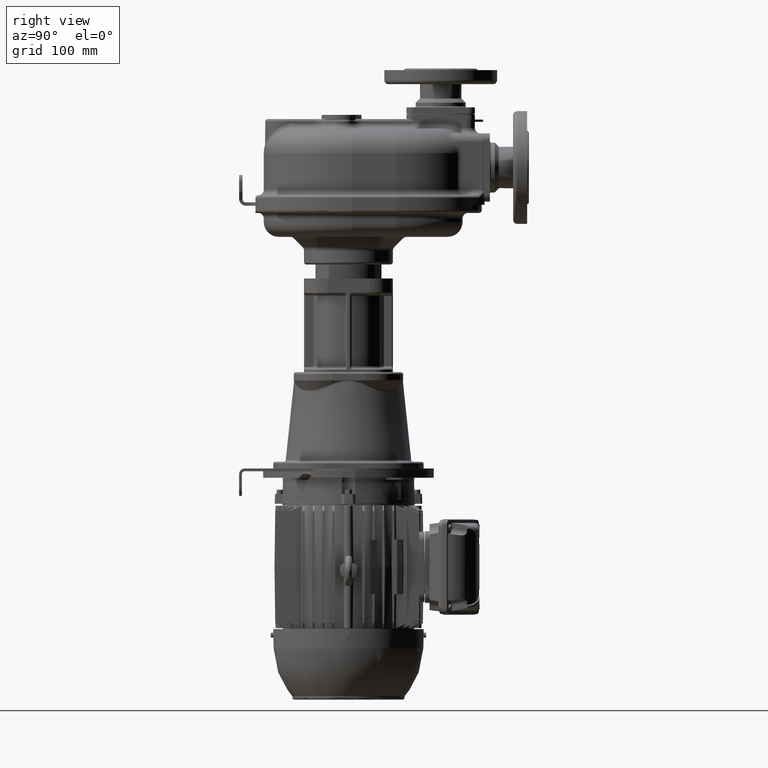
[diagram: clean part render]
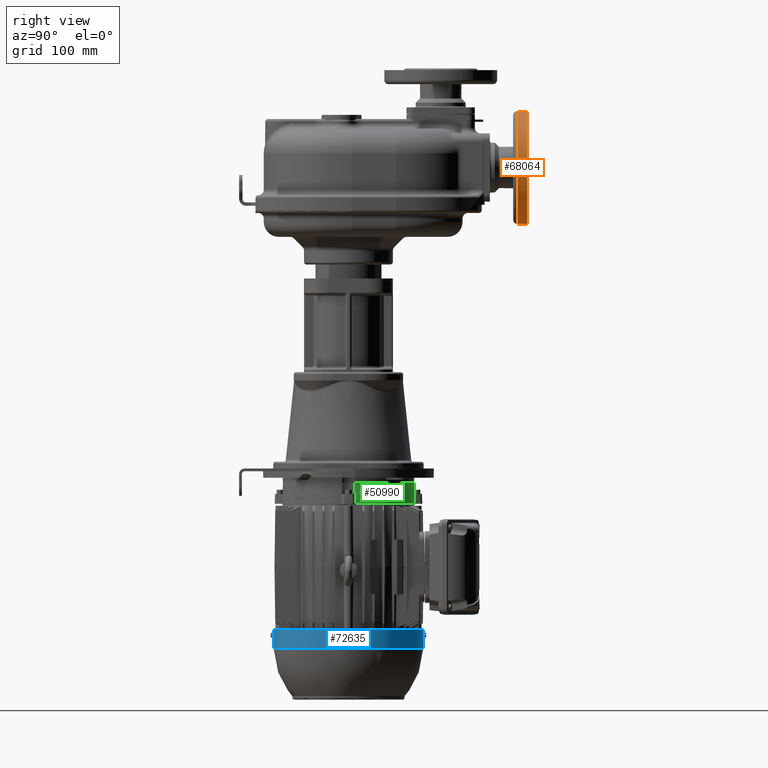
[diagram: same view with three faces highlighted in distinct colors, each labeled with its STEP entity id]
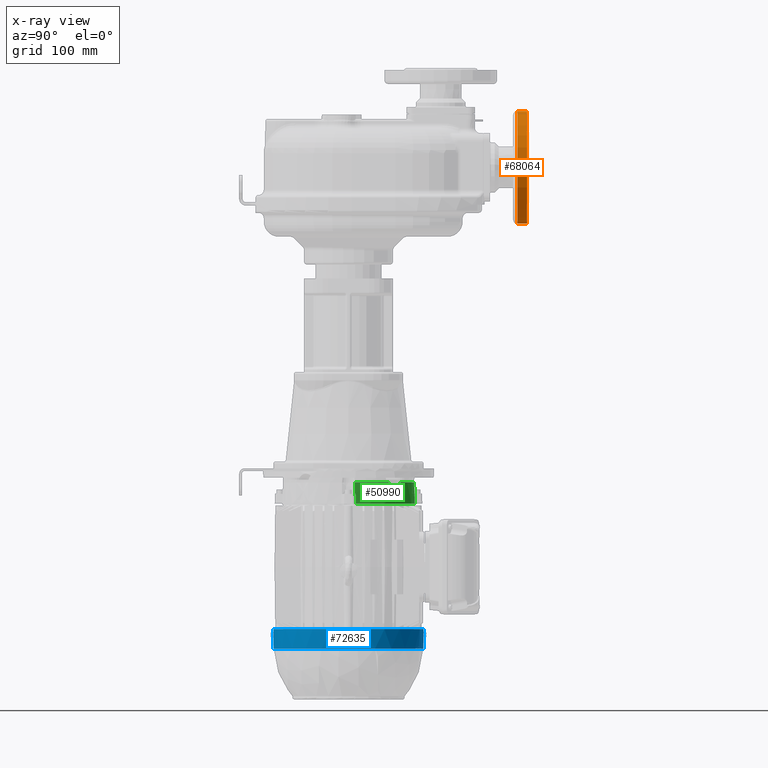
[diagram: x-ray of the same camera — body ghosted, the three highlighted faces saturated]
A machine part, right view with three faces highlighted in distinct colors.
The next image is the same camera in x-ray (body ghosted, the three faces saturated) — at least one of them is partly hidden behind the body in this view.
Their STEP definitions:

[orange] entity #68064 — the highlighted cylindrical surface (partial cylindrical patch) has radius 82.5 mm, axis along (0, 1, 0).
#16157=CARTESIAN_POINT('',(4.3E1,4.07E2,2.7E1));
#16158=DIRECTION('',(0.E0,-1.E0,0.E0));
#16159=DIRECTION('',(0.E0,0.E0,-1.E0));
#16160=AXIS2_PLACEMENT_3D('',#16157,#16158,#16159);
#16172=DIRECTION('',(0.E0,-1.E0,0.E0));
#16173=VECTOR('',#16172,1.45E1);
#16174=CARTESIAN_POINT('',(4.3E1,4.215E2,-5.55E1));
#16175=LINE('',#16174,#16173);
#16176=DIRECTION('',(0.E0,-1.E0,0.E0));
#16177=VECTOR('',#16176,1.45E1);
#16178=CARTESIAN_POINT('',(4.3E1,4.215E2,1.095E2));
#16179=LINE('',#16178,#16177);
#16180=CARTESIAN_POINT('',(4.3E1,4.215E2,2.7E1));
#16181=DIRECTION('',(0.E0,-1.E0,0.E0));
#16182=DIRECTION('',(0.E0,0.E0,-1.E0));
#16183=AXIS2_PLACEMENT_3D('',#16180,#16181,#16182);
#39355=CARTESIAN_POINT('',(4.3E1,4.215E2,-5.55E1));
#39356=CARTESIAN_POINT('',(4.3E1,4.07E2,-5.55E1));
#39357=VERTEX_POINT('',#39355);
#39358=VERTEX_POINT('',#39356);
#39375=CARTESIAN_POINT('',(4.3E1,4.215E2,1.095E2));
#39376=CARTESIAN_POINT('',(4.3E1,4.07E2,1.095E2));
#39377=VERTEX_POINT('',#39375);
#39378=VERTEX_POINT('',#39376);
#68052=CARTESIAN_POINT('',(4.3E1,3.8E2,2.7E1));
#68053=DIRECTION('',(0.E0,1.E0,0.E0));
#68054=DIRECTION('',(0.E0,0.E0,1.E0));
#68055=AXIS2_PLACEMENT_3D('',#68052,#68053,#68054);
#68056=CYLINDRICAL_SURFACE('',#68055,8.25E1);
#68057=ORIENTED_EDGE('',*,*,#68042,.T.);
#68058=ORIENTED_EDGE('',*,*,#68019,.T.);
#68059=ORIENTED_EDGE('',*,*,#68046,.F.);
#68061=ORIENTED_EDGE('',*,*,#68060,.F.);
#68062=EDGE_LOOP('',(#68057,#68058,#68059,#68061));
#68063=FACE_OUTER_BOUND('',#68062,.F.);
#68064=ADVANCED_FACE('',(#68063),#68056,.T.);
#16161=CIRCLE('',#16160,8.25E1);
#16184=CIRCLE('',#16183,8.25E1);
#68019=EDGE_CURVE('',#39358,#39378,#16161,.T.);
#68042=EDGE_CURVE('',#39357,#39358,#16175,.T.);
#68046=EDGE_CURVE('',#39377,#39378,#16179,.T.);
#68060=EDGE_CURVE('',#39357,#39377,#16184,.T.);

[blue] entity #72635 — the highlighted conical surface has half-angle 1.5 deg.
#19885=CARTESIAN_POINT('',(0.E0,1.6E2,-6.486E2));
#19886=DIRECTION('',(0.E0,0.E0,1.E0));
#19887=DIRECTION('',(-9.874974173864E-1,-1.576351821620E-1,0.E0));
#19888=AXIS2_PLACEMENT_3D('',#19885,#19886,#19887);
#19890=CARTESIAN_POINT('',(-1.089452804042E2,1.710790834172E2,
-6.769675453702E2));
#19891=CARTESIAN_POINT('',(-1.089390978625E2,1.717512794151E2,
-6.746053225998E2));
#19892=CARTESIAN_POINT('',(-1.089267170858E2,1.729812686217E2,
-6.698682309527E2));
#19893=CARTESIAN_POINT('',(-1.089021226960E2,1.751350953002E2,
-6.604183117379E2));
#19894=CARTESIAN_POINT('',(-1.088837619239E2,1.765190599600E2,
-6.533198317634E2));
#19895=CARTESIAN_POINT('',(-1.088715912990E2,1.773792728068E2,
-6.486000000042E2));
#19897=CARTESIAN_POINT('',(-1.088715903353E2,1.426207211557E2,
-6.486000000018E2));
#19898=CARTESIAN_POINT('',(-1.088837609613E2,1.434809341516E2,
-6.533198327395E2));
#19899=CARTESIAN_POINT('',(-1.089021228382E2,1.448649050147E2,
-6.604183102906E2));
#19900=CARTESIAN_POINT('',(-1.089267172024E2,1.470187325976E2,
-6.698682307089E2));
#19901=CARTESIAN_POINT('',(-1.089390975339E2,1.482487175526E2,
-6.746053233856E2));
#19902=CARTESIAN_POINT('',(-1.089452800748E2,1.489209135470E2,
-6.769675461560E2));
#19904=CARTESIAN_POINT('',(3.E0,2.699865131664E2,-6.571E2));
#19905=CARTESIAN_POINT('',(3.E0,2.699853537140E2,-6.571442612396E2));
#19906=CARTESIAN_POINT('',(2.998040619877E0,2.699830883314E2,
-6.572327817365E2));
#19907=CARTESIAN_POINT('',(2.989229989390E0,2.699798570063E2,
-6.573652962819E2));
#19908=CARTESIAN_POINT('',(2.974565714480E0,2.699767973114E2,
-6.574972863990E2));
#19909=CARTESIAN_POINT('',(2.954076952146E0,2.699739128732E2,
-6.576284947747E2));
#19910=CARTESIAN_POINT('',(2.927804151704E0,2.699712060764E2,
-6.577586653305E2));
#19911=CARTESIAN_POINT('',(2.895798712032E0,2.699686780612E2,
-6.578875448852E2));
#19912=CARTESIAN_POINT('',(2.858123143425E0,2.699663287874E2,
-6.580148820441E2));
#19913=CARTESIAN_POINT('',(2.814852157431E0,2.699641571180E2,
-6.581404248095E2));
#19914=CARTESIAN_POINT('',(2.766073465383E0,2.699621608359E2,
-6.582639214341E2));
#19915=CARTESIAN_POINT('',(2.711883668999E0,2.699603365377E2,
-6.583851310268E2));
#19916=CARTESIAN_POINT('',(2.652389051719E0,2.699586798125E2,
-6.585038185509E2));
#19917=CARTESIAN_POINT('',(2.587706165348E0,2.699571853402E2,
-6.586197534520E2));
#19918=CARTESIAN_POINT('',(2.517961403601E0,2.699558469605E2,
-6.587327105758E2));
#19919=CARTESIAN_POINT('',(2.443290799982E0,2.699546577576E2,
-6.588424704660E2));
#19920=CARTESIAN_POINT('',(2.363839975749E0,2.699536101485E2,
-6.589488195789E2));
#19921=CARTESIAN_POINT('',(2.279763120378E0,2.699526959675E2,
-6.590515515325E2));
#19922=CARTESIAN_POINT('',(2.191225952763E0,2.699519065901E2,
-6.591504638455E2));
#19923=CARTESIAN_POINT('',(2.098401410132E0,2.699512329824E2,
-6.592453635349E2));
#19924=CARTESIAN_POINT('',(2.001470236424E0,2.699506658219E2,
-6.593360657828E2));
#19925=CARTESIAN_POINT('',(1.900621217956E0,2.699501956024E2,
-6.594223936956E2));
#19926=CARTESIAN_POINT('',(1.796050820888E0,2.699498127340E2,
-6.595041787019E2));
#19927=CARTESIAN_POINT('',(1.687962704096E0,2.699495076429E2,
-6.595812609728E2));
#19928=CARTESIAN_POINT('',(1.576567728517E0,2.699492708707E2,
-6.596534895276E2));
#19929=CARTESIAN_POINT('',(1.462082420407E0,2.699490931696E2,
-6.597207231661E2));
#19930=CARTESIAN_POINT('',(1.344733401633E0,2.699489656012E2,
-6.597828282024E2));
#19931=CARTESIAN_POINT('',(1.224749824678E0,2.699488796154E2,
-6.598396830508E2));
#19932=CARTESIAN_POINT('',(1.102366049570E0,2.699488271441E2,
-6.598911762246E2));
#19933=CARTESIAN_POINT('',(9.778213642613E-1,2.699488006810E2,
-6.599372065996E2));
#19934=CARTESIAN_POINT('',(8.513592750519E-1,2.699487933556E2,
-6.599776837217E2));
#19935=CARTESIAN_POINT('',(7.232270892876E-1,2.699487990007E2,
-6.600125279535E2));
#19936=CARTESIAN_POINT('',(5.936756483796E-1,2.699488122136E2,
-6.600416706294E2));
#19937=CARTESIAN_POINT('',(4.629579540665E-1,2.699488284086E2,
-6.600650542978E2));
#19938=CARTESIAN_POINT('',(3.313335473346E-1,2.699488438614E2,
-6.600826322457E2));
#19939=CARTESIAN_POINT('',(1.990601204412E-1,2.699488557471E2,
-6.600943700726E2));
#19940=CARTESIAN_POINT('',(6.639678564498E-2,2.699488621670E2,
-6.601002447458E2));
#19941=CARTESIAN_POINT('',(-6.639660163694E-2,2.699488621670E2,
-6.601002447496E2));
#19942=CARTESIAN_POINT('',(-1.990599108573E-1,2.699488557471E2,
-6.600943700862E2));
#19943=CARTESIAN_POINT('',(-3.313332990020E-1,2.699488438615E2,
-6.600826322720E2));
#19944=CARTESIAN_POINT('',(-4.629576065805E-1,2.699488284087E2,
-6.600650543512E2));
#19945=CARTESIAN_POINT('',(-5.936753212289E-1,2.699488122137E2,
-6.600416706966E2));
#19946=CARTESIAN_POINT('',(-7.232268516983E-1,2.699487990007E2,
-6.600125280136E2));
#19947=CARTESIAN_POINT('',(-8.513590783078E-1,2.699487933556E2,
-6.599776837803E2));
#19948=CARTESIAN_POINT('',(-9.778211910551E-1,2.699488006810E2,
-6.599372066596E2));
#19949=CARTESIAN_POINT('',(-1.102365877657E0,2.699488271441E2,
-6.598911762921E2));
#19950=CARTESIAN_POINT('',(-1.224749626437E0,2.699488796153E2,
-6.598396831392E2));
#19951=CARTESIAN_POINT('',(-1.344733240105E0,2.699489656011E2,
-6.597828282848E2));
#19952=CARTESIAN_POINT('',(-1.462082330439E0,2.699490931695E2,
-6.597207232165E2));
#19953=CARTESIAN_POINT('',(-1.576567610563E0,2.699492708704E2,
-6.596534896002E2));
#19954=CARTESIAN_POINT('',(-1.687962617022E0,2.699495076426E2,
-6.595812610324E2));
#19955=CARTESIAN_POINT('',(-1.796050735474E0,2.699498127337E2,
-6.595041787659E2));
#19956=CARTESIAN_POINT('',(-1.900621161110E0,2.699501956021E2,
-6.594223937427E2));
#19957=CARTESIAN_POINT('',(-2.001470197046E0,2.699506658217E2,
-6.593360658186E2));
#19958=CARTESIAN_POINT('',(-2.098401394789E0,2.699512329823E2,
-6.592453635502E2));
#19959=CARTESIAN_POINT('',(-2.191225928402E0,2.699519065899E2,
-6.591504638710E2));
#19960=CARTESIAN_POINT('',(-2.279763087210E0,2.699526959671E2,
-6.590515515713E2));
#19961=CARTESIAN_POINT('',(-2.363839955260E0,2.699536101483E2,
-6.589488196056E2));
#19962=CARTESIAN_POINT('',(-2.443290790579E0,2.699546577575E2,
-6.588424704794E2));
#19963=CARTESIAN_POINT('',(-2.517961398917E0,2.699558469604E2,
-6.587327105832E2));
#19964=CARTESIAN_POINT('',(-2.587706163354E0,2.699571853401E2,
-6.586197534555E2));
#19965=CARTESIAN_POINT('',(-2.652389051122E0,2.699586798125E2,
-6.585038185521E2));
#19966=CARTESIAN_POINT('',(-2.711883669233E0,2.699603365377E2,
-6.583851310263E2));
#19967=CARTESIAN_POINT('',(-2.766073465411E0,2.699621608359E2,
-6.582639214340E2));
#19968=CARTESIAN_POINT('',(-2.814852157540E0,2.699641571180E2,
-6.581404248092E2));
#19969=CARTESIAN_POINT('',(-2.858123143467E0,2.699663287874E2,
-6.580148820440E2));
#19970=CARTESIAN_POINT('',(-2.895798712052E0,2.699686780612E2,
-6.578875448851E2));
#19971=CARTESIAN_POINT('',(-2.927804151716E0,2.699712060764E2,
-6.577586653305E2));
#19972=CARTESIAN_POINT('',(-2.954076952150E0,2.699739128732E2,
-6.576284947747E2));
#19973=CARTESIAN_POINT('',(-2.974565714480E0,2.699767973114E2,
-6.574972863990E2));
#19974=CARTESIAN_POINT('',(-2.989229989389E0,2.699798570063E2,
-6.573652962819E2));
#19975=CARTESIAN_POINT('',(-2.998040619875E0,2.699830883314E2,
-6.572327817365E2));
#19976=CARTESIAN_POINT('',(-3.E0,2.699853537140E2,-6.571442612396E2));
#19977=CARTESIAN_POINT('',(-3.E0,2.699865131664E2,-6.571E2));
#19979=CARTESIAN_POINT('',(-1.381011003404E0,2.700884971280E2,
-6.544367672636E2));
#19980=CARTESIAN_POINT('',(-1.419784051620E0,2.700874842112E2,
-6.544568729064E2));
#19981=CARTESIAN_POINT('',(-1.496454948059E0,2.700853839517E2,
-6.544987794996E2));
#19982=CARTESIAN_POINT('',(-1.608616076699E0,2.700820248172E2,
-6.545666068663E2));
#19983=CARTESIAN_POINT('',(-1.717717245604E0,2.700784723385E2,
-6.546392735086E2));
#19984=CARTESIAN_POINT('',(-1.823549538050E0,2.700747426705E2,
-6.547166419862E2));
#19985=CARTESIAN_POINT('',(-1.925909846073E0,2.700708526363E2,
-6.547985655564E2));
#19986=CARTESIAN_POINT('',(-2.024601554639E0,2.700668196143E2,
-6.548848885752E2));
#19987=CARTESIAN_POINT('',(-2.119434935309E0,2.700626614291E2,
-6.549754467743E2));
#19988=CARTESIAN_POINT('',(-2.210227561480E0,2.700583962403E2,
-6.550700675601E2));
#19989=CARTESIAN_POINT('',(-2.296804450271E0,2.700540424392E2,
-6.551685701256E2));
#19990=CARTESIAN_POINT('',(-2.378997174959E0,2.700496186137E2,
-6.552707638929E2));
#19991=CARTESIAN_POINT('',(-2.456648224089E0,2.700451432246E2,
-6.553764536474E2));
#19992=CARTESIAN_POINT('',(-2.529608342154E0,2.700406346324E2,
-6.554854368147E2));
#19993=CARTESIAN_POINT('',(-2.597737480310E0,2.700361109563E2,
-6.555975045209E2));
#19994=CARTESIAN_POINT('',(-2.660904967649E0,2.700315899700E2,
-6.557124419300E2));
#19995=CARTESIAN_POINT('',(-2.718989804416E0,2.700270889932E2,
-6.558300287569E2));
#19996=CARTESIAN_POINT('',(-2.771880872167E0,2.700226247940E2,
-6.559500396364E2));
#19997=CARTESIAN_POINT('',(-2.819477325003E0,2.700182134693E2,
-6.560722453028E2));
#19998=CARTESIAN_POINT('',(-2.861687296711E0,2.700138705098E2,
-6.561964086226E2));
#19999=CARTESIAN_POINT('',(-2.898430797640E0,2.700096104691E2,
-6.563222918473E2));
#20000=CARTESIAN_POINT('',(-2.929638439548E0,2.700054469889E2,
-6.564496545605E2));
#20001=CARTESIAN_POINT('',(-2.955251269895E0,2.700013927670E2,
-6.565782530664E2));
#20002=CARTESIAN_POINT('',(-2.975220642515E0,2.699974595765E2,
-6.567078380511E2));
#20003=CARTESIAN_POINT('',(-2.989509340425E0,2.699936581197E2,
-6.568381576070E2));
#20004=CARTESIAN_POINT('',(-2.998091937604E0,2.699899978680E2,
-6.569689617951E2));
#20005=CARTESIAN_POINT('',(-3.E0,2.699876573368E2,-6.570563221413E2));
#20006=CARTESIAN_POINT('',(-3.E0,2.699865131664E2,-6.571E2));
#20008=CARTESIAN_POINT('',(-1.381011003404E0,2.700884971280E2,
-6.544367672636E2));
#20009=CARTESIAN_POINT('',(-1.426250502018E0,2.700884971280E2,
-6.544150966630E2));
#20010=CARTESIAN_POINT('',(-1.517974717978E0,2.700884971280E2,
-6.543690258593E2));
#20011=CARTESIAN_POINT('',(-1.658841119224E0,2.700884971280E2,
-6.542914740340E2));
#20012=CARTESIAN_POINT('',(-1.803580536127E0,2.700884971280E2,
-6.542046295852E2));
#20013=CARTESIAN_POINT('',(-1.952434001587E0,2.700884971280E2,
-6.541077498585E2));
#20014=CARTESIAN_POINT('',(-2.054888416299E0,2.700884971280E2,
-6.540356964938E2));
#20015=CARTESIAN_POINT('',(-2.106803688235E0,2.700884971280E2,
-6.539977623851E2));
#20017=CARTESIAN_POINT('',(-2.106803688235E0,2.700884971280E2,
-6.539977623851E2));
#20018=CARTESIAN_POINT('',(-2.064179531992E0,2.700900666396E2,
-6.539689812886E2));
#20019=CARTESIAN_POINT('',(-1.977834123518E0,2.700931299271E2,
-6.539132214942E2));
#20020=CARTESIAN_POINT('',(-1.844928720573E0,2.700974894210E2,
-6.538349166381E2));
#20021=CARTESIAN_POINT('',(-1.708944761607E0,2.701015914430E2,
-6.537621346487E2));
#20022=CARTESIAN_POINT('',(-1.570089000979E0,2.701054189107E2,
-6.536949818826E2));
#20023=CARTESIAN_POINT('',(-1.428601347537E0,2.701089548018E2,
-6.536335744074E2));
#20024=CARTESIAN_POINT('',(-1.284718231678E0,2.701121835855E2,
-6.535780133789E2));
#20025=CARTESIAN_POINT('',(-1.138681626886E0,2.701150909571E2,
-6.535283913788E2));
#20026=CARTESIAN_POINT('',(-9.907370409771E-1,2.701176639925E2,
-6.534847909426E2));
#20027=CARTESIAN_POINT('',(-8.411363462928E-1,2.701198911758E2,
-6.534472852286E2));
#20028=CARTESIAN_POINT('',(-6.901291712966E-1,2.701217625979E2,
-6.534159356764E2));
#20029=CARTESIAN_POINT('',(-5.379682801761E-1,2.701232698969E2,
-6.533907939091E2));
#20030=CARTESIAN_POINT('',(-3.849078408666E-1,2.701244063301E2,
-6.533719012302E2));
#20031=CARTESIAN_POINT('',(-2.312033621190E-1,2.701251668031E2,
-6.533592887244E2));
#20032=CARTESIAN_POINT('',(-7.711141666591E-2,2.701255479010E2,
-6.533529771849E2));
#20033=CARTESIAN_POINT('',(7.711141666676E-2,2.701255479010E2,
-6.533529771849E2));
#20034=CARTESIAN_POINT('',(2.312033621152E-1,2.701251668031E2,
-6.533592887244E2));
#20035=CARTESIAN_POINT('',(3.849078408615E-1,2.701244063301E2,
-6.533719012302E2));
#20036=CARTESIAN_POINT('',(5.379682801716E-1,2.701232698969E2,
-6.533907939091E2));
#20037=CARTESIAN_POINT('',(6.901291712920E-1,2.701217625979E2,
-6.534159356764E2));
#20038=CARTESIAN_POINT('',(8.411363462868E-1,2.701198911758E2,
-6.534472852286E2));
#20039=CARTESIAN_POINT('',(9.907370409710E-1,2.701176639925E2,
-6.534847909426E2));
#20040=CARTESIAN_POINT('',(1.138681626877E0,2.701150909571E2,
-6.535283913788E2));
#20041=CARTESIAN_POINT('',(1.284718231674E0,2.701121835855E2,
-6.535780133789E2));
#20042=CARTESIAN_POINT('',(1.428601347534E0,2.701089548018E2,
-6.536335744074E2));
#20043=CARTESIAN_POINT('',(1.570089000977E0,2.701054189107E2,
-6.536949818826E2));
#20044=CARTESIAN_POINT('',(1.708944761605E0,2.701015914430E2,
-6.537621346487E2));
#20045=CARTESIAN_POINT('',(1.844928720574E0,2.700974894210E2,
-6.538349166381E2));
#20046=CARTESIAN_POINT('',(1.977834123516E0,2.700931299271E2,
-6.539132214942E2));
#20047=CARTESIAN_POINT('',(2.064179531992E0,2.700900666396E2,
-6.539689812886E2));
#20048=CARTESIAN_POINT('',(2.106803688236E0,2.700884971280E2,
-6.539977623851E2));
#20050=CARTESIAN_POINT('',(2.106803688236E0,2.700884971280E2,
-6.539977623851E2));
#20051=CARTESIAN_POINT('',(2.054888315807E0,2.700884971280E2,
-6.540356965672E2));
#20052=CARTESIAN_POINT('',(1.952433737932E0,2.700884971280E2,
-6.541077500402E2));
#20053=CARTESIAN_POINT('',(1.803580152887E0,2.700884971280E2,
-6.542046298258E2));
#20054=CARTESIAN_POINT('',(1.658840745804E0,2.700884971280E2,
-6.542914742476E2));
#20055=CARTESIAN_POINT('',(1.517974477090E0,2.700884971280E2,
-6.543690259832E2));
#20056=CARTESIAN_POINT('',(1.426250409709E0,2.700884971280E2,
-6.544150967072E2));
#20057=CARTESIAN_POINT('',(1.381011003404E0,2.700884971280E2,
-6.544367672636E2));
#20059=CARTESIAN_POINT('',(3.E0,2.699865131664E2,-6.571E2));
#20060=CARTESIAN_POINT('',(3.E0,2.699876573402E2,-6.570563220110E2));
#20061=CARTESIAN_POINT('',(2.998091924689E0,2.699899978765E2,
-6.569689614834E2));
#20062=CARTESIAN_POINT('',(2.989509320397E0,2.699936581256E2,
-6.568381574009E2));
#20063=CARTESIAN_POINT('',(2.975220623324E0,2.699974595808E2,
-6.567078379059E2));
#20064=CARTESIAN_POINT('',(2.955251240980E0,2.700013927721E2,
-6.565782528996E2));
#20065=CARTESIAN_POINT('',(2.929638396609E0,2.700054469952E2,
-6.564496543658E2));
#20066=CARTESIAN_POINT('',(2.898430743394E0,2.700096104758E2,
-6.563222916445E2));
#20067=CARTESIAN_POINT('',(2.861687213172E0,2.700138705191E2,
-6.561964083484E2));
#20068=CARTESIAN_POINT('',(2.819477172064E0,2.700182134841E2,
-6.560722448878E2));
#20069=CARTESIAN_POINT('',(2.771880823554E0,2.700226247980E2,
-6.559500395297E2));
#20070=CARTESIAN_POINT('',(2.718989789056E0,2.700270889945E2,
-6.558300287243E2));
#20071=CARTESIAN_POINT('',(2.660904967834E0,2.700315899700E2,
-6.557124419321E2));
#20072=CARTESIAN_POINT('',(2.597737504221E0,2.700361109547E2,
-6.555975045631E2));
#20073=CARTESIAN_POINT('',(2.529608375335E0,2.700406346302E2,
-6.554854368668E2));
#20074=CARTESIAN_POINT('',(2.456648254110E0,2.700451432228E2,
-6.553764536893E2));
#20075=CARTESIAN_POINT('',(2.378997157646E0,2.700496186148E2,
-6.552707638672E2));
#20076=CARTESIAN_POINT('',(2.296804333653E0,2.700540424453E2,
-6.551685699839E2));
#20077=CARTESIAN_POINT('',(2.210227410416E0,2.700583962475E2,
-6.550700673975E2));
#20078=CARTESIAN_POINT('',(2.119434896601E0,2.700626614307E2,
-6.549754467391E2));
#20079=CARTESIAN_POINT('',(2.024601592050E0,2.700668196127E2,
-6.548848886104E2));
#20080=CARTESIAN_POINT('',(1.925909897276E0,2.700708526343E2,
-6.547985655990E2));
#20081=CARTESIAN_POINT('',(1.823549566764E0,2.700747426694E2,
-6.547166420074E2));
#20082=CARTESIAN_POINT('',(1.717717234277E0,2.700784723389E2,
-6.546392734997E2));
#20083=CARTESIAN_POINT('',(1.608616009815E0,2.700820248194E2,
-6.545666068228E2));
#20084=CARTESIAN_POINT('',(1.496454855416E0,2.700853839544E2,
-6.544987794468E2));
#20085=CARTESIAN_POINT('',(1.419784011034E0,2.700874842123E2,
-6.544568728854E2));
#20086=CARTESIAN_POINT('',(1.381011003404E0,2.700884971280E2,
-6.544367672636E2));
#20088=CARTESIAN_POINT('',(-3.E0,5.001348683360E1,-6.571E2));
#20089=CARTESIAN_POINT('',(-3.E0,5.001464628604E1,-6.571442612407E2));
#20090=CARTESIAN_POINT('',(-2.998040619776E0,5.001691166862E1,
-6.572327817394E2));
#20091=CARTESIAN_POINT('',(-2.989229989023E0,5.002014299377E1,
-6.573652962862E2));
#20092=CARTESIAN_POINT('',(-2.974565713813E0,5.002320268873E1,
-6.574972864041E2));
#20093=CARTESIAN_POINT('',(-2.954076951092E0,5.002608712695E1,
-6.576284947807E2));
#20094=CARTESIAN_POINT('',(-2.927804150002E0,5.002879392373E1,
-6.577586653383E2));
#20095=CARTESIAN_POINT('',(-2.895798709172E0,5.003132193904E1,
-6.578875448959E2));
#20096=CARTESIAN_POINT('',(-2.858123138388E0,5.003367121292E1,
-6.580148820605E2));
#20097=CARTESIAN_POINT('',(-2.814852147233E0,5.003584288248E1,
-6.581404248372E2));
#20098=CARTESIAN_POINT('',(-2.766073456572E0,5.003783916440E1,
-6.582639214548E2));
#20099=CARTESIAN_POINT('',(-2.711883659594E0,5.003966346257E1,
-6.583851310466E2));
#20100=CARTESIAN_POINT('',(-2.652389043898E0,5.004132018767E1,
-6.585038185656E2));
#20101=CARTESIAN_POINT('',(-2.587706157142E0,5.004281465998E1,
-6.586197534660E2));
#20102=CARTESIAN_POINT('',(-2.517961393218E0,5.004415303968E1,
-6.587327105920E2));
#20103=CARTESIAN_POINT('',(-2.443290781643E0,5.004534224264E1,
-6.588424704921E2));
#20104=CARTESIAN_POINT('',(-2.363839941766E0,5.004638985188E1,
-6.589488196231E2));
#20105=CARTESIAN_POINT('',(-2.279763066163E0,5.004730403307E1,
-6.590515515959E2));
#20106=CARTESIAN_POINT('',(-2.191225911387E0,5.004809341026E1,
-6.591504638890E2));
#20107=CARTESIAN_POINT('',(-2.098401378554E0,5.004876701784E1,
-6.592453635660E2));
#20108=CARTESIAN_POINT('',(-2.001470181463E0,5.004933417841E1,
-6.593360658325E2));
#20109=CARTESIAN_POINT('',(-1.900621144385E0,5.004980439792E1,
-6.594223937565E2));
#20110=CARTESIAN_POINT('',(-1.796050715154E0,5.005018726637E1,
-6.595041787812E2));
#20111=CARTESIAN_POINT('',(-1.687962590401E0,5.005049235743E1,
-6.595812610507E2));
#20112=CARTESIAN_POINT('',(-1.576567571737E0,5.005072912963E1,
-6.596534896244E2));
#20113=CARTESIAN_POINT('',(-1.462082281779E0,5.005090683059E1,
-6.597207232436E2));
#20114=CARTESIAN_POINT('',(-1.344733203142E0,5.005103439895E1,
-6.597828283031E2));
#20115=CARTESIAN_POINT('',(-1.224749593124E0,5.005112038473E1,
-6.598396831541E2));
#20116=CARTESIAN_POINT('',(-1.102365847306E0,5.005117285593E1,
-6.598911763041E2));
#20117=CARTESIAN_POINT('',(-9.778211579537E-1,5.005119931899E1,
-6.599372066710E2));
#20118=CARTESIAN_POINT('',(-8.513590379383E-1,5.005120664443E1,
-6.599776837926E2));
#20119=CARTESIAN_POINT('',(-7.232267891756E-1,5.005120099925E1,
-6.600125280291E2));
#20120=CARTESIAN_POINT('',(-5.936752450439E-1,5.005118778632E1,
-6.600416707134E2));
#20121=CARTESIAN_POINT('',(-4.629574591903E-1,5.005117159133E1,
-6.600650543725E2));
#20122=CARTESIAN_POINT('',(-3.313334253045E-1,5.005115613855E1,
-6.600826322542E2));
#20123=CARTESIAN_POINT('',(-1.990601421186E-1,5.005114425288E1,
-6.600943700709E2));
#20124=CARTESIAN_POINT('',(-6.639680092695E-2,5.005113783305E1,
-6.601002447456E2));
#20125=CARTESIAN_POINT('',(6.639658722819E-2,5.005113783304E1,
-6.601002447499E2));
#20126=CARTESIAN_POINT('',(1.990598960020E-1,5.005114425286E1,
-6.600943700872E2));
#20127=CARTESIAN_POINT('',(3.313332825853E-1,5.005115613853E1,
-6.600826322738E2));
#20128=CARTESIAN_POINT('',(4.629575861183E-1,5.005117159135E1,
-6.600650543544E2));
#20129=CARTESIAN_POINT('',(5.936753052192E-1,5.005118778632E1,
-6.600416706999E2));
#20130=CARTESIAN_POINT('',(7.232268431688E-1,5.005120099925E1,
-6.600125280158E2));
#20131=CARTESIAN_POINT('',(8.513590731946E-1,5.005120664443E1,
-6.599776837819E2));
#20132=CARTESIAN_POINT('',(9.778211881156E-1,5.005119931898E1,
-6.599372066606E2));
#20133=CARTESIAN_POINT('',(1.102365875816E0,5.005117285592E1,
-6.598911762928E2));
#20134=CARTESIAN_POINT('',(1.224749625486E0,5.005112038472E1,
-6.598396831397E2));
#20135=CARTESIAN_POINT('',(1.344733240356E0,5.005103439892E1,
-6.597828282847E2));
#20136=CARTESIAN_POINT('',(1.462082333186E0,5.005090683053E1,
-6.597207232151E2));
#20137=CARTESIAN_POINT('',(1.576567616114E0,5.005072912955E1,
-6.596534895968E2));
#20138=CARTESIAN_POINT('',(1.687962623314E0,5.005049235735E1,
-6.595812610282E2));
#20139=CARTESIAN_POINT('',(1.796050742154E0,5.005018726629E1,
-6.595041787609E2));
#20140=CARTESIAN_POINT('',(1.900621168120E0,5.004980439782E1,
-6.594223937370E2));
#20141=CARTESIAN_POINT('',(2.001470204841E0,5.004933417829E1,
-6.593360658117E2));
#20142=CARTESIAN_POINT('',(2.098401404665E0,5.004876701767E1,
-6.592453635405E2));
#20143=CARTESIAN_POINT('',(2.191225940411E0,5.004809341003E1,
-6.591504638584E2));
#20144=CARTESIAN_POINT('',(2.279763107552E0,5.004730403266E1,
-6.590515515476E2));
#20145=CARTESIAN_POINT('',(2.363839968091E0,5.004638985156E1,
-6.589488195888E2));
#20146=CARTESIAN_POINT('',(2.443290795695E0,5.004534224243E1,
-6.588424704721E2));
#20147=CARTESIAN_POINT('',(2.517961401198E0,5.004415303954E1,
-6.587327105796E2));
#20148=CARTESIAN_POINT('',(2.587706163998E0,5.004281465984E1,
-6.586197534544E2));
#20149=CARTESIAN_POINT('',(2.652389051004E0,5.004132018750E1,
-6.585038185523E2));
#20150=CARTESIAN_POINT('',(2.711883668970E0,5.003966346229E1,
-6.583851310269E2));
#20151=CARTESIAN_POINT('',(2.766073465979E0,5.003783916406E1,
-6.582639214328E2));
#20152=CARTESIAN_POINT('',(2.814852160153E0,5.003584288189E1,
-6.581404248022E2));
#20153=CARTESIAN_POINT('',(2.858123144287E0,5.003367121256E1,
-6.580148820411E2));
#20154=CARTESIAN_POINT('',(2.895798711858E0,5.003132193885E1,
-6.578875448858E2));
#20155=CARTESIAN_POINT('',(2.927804151579E0,5.002879392358E1,
-6.577586653311E2));
#20156=CARTESIAN_POINT('',(2.954076951948E0,5.002608712684E1,
-6.576284947758E2));
#20157=CARTESIAN_POINT('',(2.974565714253E0,5.002320268865E1,
-6.574972864006E2));
#20158=CARTESIAN_POINT('',(2.989229989125E0,5.002014299373E1,
-6.573652962847E2));
#20159=CARTESIAN_POINT('',(2.998040619758E0,5.001691166863E1,
-6.572327817395E2));
#20160=CARTESIAN_POINT('',(3.E0,5.001464628604E1,-6.571442612409E2));
#20161=CARTESIAN_POINT('',(3.E0,5.001348683360E1,-6.571E2));
#20163=CARTESIAN_POINT('',(3.E0,5.001348683360E1,-6.571E2));
#20164=CARTESIAN_POINT('',(3.E0,5.001232817163E1,-6.570557689354E2));
#20165=CARTESIAN_POINT('',(2.998043291374E0,5.000995732643E1,
-6.569673020782E2));
#20166=CARTESIAN_POINT('',(2.989241991894E0,5.000624789093E1,
-6.568348473716E2));
#20167=CARTESIAN_POINT('',(2.974589666564E0,5.000239388522E1,
-6.567028963340E2));
#20168=CARTESIAN_POINT('',(2.954112818912E0,4.999840512721E1,
-6.565717066325E2));
#20169=CARTESIAN_POINT('',(2.927849418874E0,4.999429263422E1,
-6.564415353711E2));
#20170=CARTESIAN_POINT('',(2.895848579852E0,4.999006852979E1,
-6.563126370439E2));
#20171=CARTESIAN_POINT('',(2.858170829456E0,4.998574604746E1,
-6.561852649126E2));
#20172=CARTESIAN_POINT('',(2.814889527655E0,4.998133959581E1,
-6.560596739367E2));
#20173=CARTESIAN_POINT('',(2.766091416260E0,4.997686465610E1,
-6.559361186539E2));
#20174=CARTESIAN_POINT('',(2.711872226531E0,4.997233731435E1,
-6.558148421398E2));
#20175=CARTESIAN_POINT('',(2.652338102059E0,4.996777439783E1,
-6.556960824792E2));
#20176=CARTESIAN_POINT('',(2.587605937881E0,4.996319341746E1,
-6.555800732378E2));
#20177=CARTESIAN_POINT('',(2.517802914170E0,4.995861244576E1,
-6.554670424640E2));
#20178=CARTESIAN_POINT('',(2.443066318896E0,4.995405001549E1,
-6.553572123909E2));
#20179=CARTESIAN_POINT('',(2.363543418213E0,4.994952501249E1,
-6.552507990780E2));
#20180=CARTESIAN_POINT('',(2.279390394760E0,4.994505652168E1,
-6.551480111175E2));
#20181=CARTESIAN_POINT('',(2.190775294539E0,4.994066387090E1,
-6.550490528788E2));
#20182=CARTESIAN_POINT('',(2.097873456862E0,4.993636627537E1,
-6.549541186629E2));
#20183=CARTESIAN_POINT('',(2.000868166488E0,4.993218279082E1,
-6.548633941938E2));
#20184=CARTESIAN_POINT('',(1.899950827899E0,4.992813221849E1,
-6.547770568375E2));
#20185=CARTESIAN_POINT('',(1.795320395807E0,4.992423297726E1,
-6.546952750971E2));
#20186=CARTESIAN_POINT('',(1.687182911437E0,4.992050298536E1,-6.546182083E2));
#20187=CARTESIAN_POINT('',(1.575751266830E0,4.991695955033E1,
-6.545460064084E2));
#20188=CARTESIAN_POINT('',(1.461243877446E0,4.991361923570E1,
-6.544788093178E2));
#20189=CARTESIAN_POINT('',(1.343888650154E0,4.991049787100E1,
-6.544167489287E2));
#20190=CARTESIAN_POINT('',(1.223915726751E0,4.990761024809E1,
-6.543599448603E2));
#20191=CARTESIAN_POINT('',(1.101559979336E0,4.990497013126E1,
-6.543085064214E2));
#20192=CARTESIAN_POINT('',(9.770605587033E-1,4.990259016728E1,
-6.542625323867E2));
#20193=CARTESIAN_POINT('',(8.506604280298E-1,4.990048180663E1,
-6.542221108867E2));
#20194=CARTESIAN_POINT('',(7.226058607269E-1,4.989865523151E1,
-6.541873192919E2));
#20195=CARTESIAN_POINT('',(5.931461273067E-1,4.989711929295E1,
-6.541582241332E2));
#20196=CARTESIAN_POINT('',(4.625324987816E-1,4.989588145437E1,
-6.541348810020E2));
#20197=CARTESIAN_POINT('',(3.310222745790E-1,4.989494777148E1,
-6.541173349793E2));
#20198=CARTESIAN_POINT('',(1.988702502723E-1,4.989432277870E1,
-6.541056191562E2));
#20199=CARTESIAN_POINT('',(6.633277541880E-2,4.989400951985E1,
-6.540997557129E2));
#20200=CARTESIAN_POINT('',(-6.633328668215E-2,4.989400952042E1,
-6.540997557236E2));
#20201=CARTESIAN_POINT('',(-1.988708259929E-1,4.989432278069E1,
-6.541056191936E2));
#20202=CARTESIAN_POINT('',(-3.310229476580E-1,4.989494777529E1,
-6.541173350508E2));
#20203=CARTESIAN_POINT('',(-4.625334232489E-1,4.989588146191E1,
-6.541348811440E2));
#20204=CARTESIAN_POINT('',(-5.931469957215E-1,4.989711930237E1,
-6.541582243113E2));
#20205=CARTESIAN_POINT('',(-7.226065046060E-1,4.989865524006E1,
-6.541873194543E2));
#20206=CARTESIAN_POINT('',(-8.506609688314E-1,4.990048181504E1,
-6.542221110475E2));
#20207=CARTESIAN_POINT('',(-9.770610398197E-1,4.990259017592E1,
-6.542625325529E2));
#20208=CARTESIAN_POINT('',(-1.101560458248E0,4.990497014096E1,
-6.543085066094E2));
#20209=CARTESIAN_POINT('',(-1.223916269287E0,4.990761026044E1,
-6.543599451019E2));
#20210=CARTESIAN_POINT('',(-1.343889192034E0,4.991049788471E1,
-6.544167491996E2));
#20211=CARTESIAN_POINT('',(-1.461244450655E0,4.991361925166E1,
-6.544788096370E2));
#20212=CARTESIAN_POINT('',(-1.575751778964E0,4.991695956604E1,
-6.545460067266E2));
#20213=CARTESIAN_POINT('',(-1.687183287546E0,4.992050299791E1,
-6.546182085577E2));
#20214=CARTESIAN_POINT('',(-1.795320711924E0,4.992423298864E1,
-6.546952753340E2));
#20215=CARTESIAN_POINT('',(-1.899951089529E0,4.992813222865E1,
-6.547770570523E2));
#20216=CARTESIAN_POINT('',(-2.000868408284E0,4.993218280088E1,
-6.548633944100E2));
#20217=CARTESIAN_POINT('',(-2.097873697497E0,4.993636628611E1,
-6.549541188979E2));
#20218=CARTESIAN_POINT('',(-2.190775567782E0,4.994066388387E1,
-6.550490531672E2));
#20219=CARTESIAN_POINT('',(-2.279390762523E0,4.994505654052E1,
-6.551480115461E2));
#20220=CARTESIAN_POINT('',(-2.363543694172E0,4.994952502778E1,
-6.552507994341E2));
#20221=CARTESIAN_POINT('',(-2.443066530438E0,4.995405002800E1,
-6.553572126889E2));
#20222=CARTESIAN_POINT('',(-2.517803083898E0,4.995861245653E1,
-6.554670427267E2));
#20223=CARTESIAN_POINT('',(-2.587606085988E0,4.996319342756E1,
-6.555800734901E2));
#20224=CARTESIAN_POINT('',(-2.652338245204E0,4.996777440833E1,
-6.556960827484E2));
#20225=CARTESIAN_POINT('',(-2.711872378266E0,4.997233732645E1,
-6.558148424591E2));
#20226=CARTESIAN_POINT('',(-2.766091579347E0,4.997686467016E1,
-6.559361190344E2));
#20227=CARTESIAN_POINT('',(-2.814889738007E0,4.998133961610E1,
-6.560596745060E2));
#20228=CARTESIAN_POINT('',(-2.858170948216E0,4.998574606055E1,
-6.561852652943E2));
#20229=CARTESIAN_POINT('',(-2.895848657865E0,4.999006853942E1,
-6.563126373332E2));
#20230=CARTESIAN_POINT('',(-2.927849475824E0,4.999429264243E1,
-6.564415356263E2));
#20231=CARTESIAN_POINT('',(-2.954112862108E0,4.999840513470E1,
-6.565717068742E2));
#20232=CARTESIAN_POINT('',(-2.974589698165E0,5.000239389234E1,
-6.567028965734E2));
#20233=CARTESIAN_POINT('',(-2.989242003031E0,5.000624789528E1,
-6.568348475263E2));
#20234=CARTESIAN_POINT('',(-2.998043288068E0,5.000995732538E1,
-6.569673020415E2));
#20235=CARTESIAN_POINT('',(-3.E0,5.001232817101E1,-6.570557689114E2));
#20236=CARTESIAN_POINT('',(-3.E0,5.001348683360E1,-6.571E2));
#20238=CARTESIAN_POINT('',(1.100721745136E2,1.574989114864E2,
-6.543058890059E2));
#20239=CARTESIAN_POINT('',(1.100721745136E2,1.575530890257E2,
-6.543528882469E2));
#20240=CARTESIAN_POINT('',(1.100721745136E2,1.576598795733E2,
-6.544424703040E2));
#20241=CARTESIAN_POINT('',(1.100721745136E2,1.578145771303E2,
-6.545637944073E2));
#20242=CARTESIAN_POINT('',(1.100721745136E2,1.579644588474E2,
-6.546734436730E2));
#20243=CARTESIAN_POINT('',(1.100721745136E2,1.580615441673E2,
-6.547394938422E2));
#20244=CARTESIAN_POINT('',(1.100721745136E2,1.581092776109E2,
-6.547708008141E2));
#20246=CARTESIAN_POINT('',(1.099865131664E2,1.57E2,-6.571E2));
#20247=CARTESIAN_POINT('',(1.099876215222E2,1.57E2,-6.570576893351E2));
#20248=CARTESIAN_POINT('',(1.099898872043E2,1.570017904637E2,
-6.569730637403E2));
#20249=CARTESIAN_POINT('',(1.099934261843E2,1.570098443183E2,
-6.568463400371E2));
#20250=CARTESIAN_POINT('',(1.099970981749E2,1.570232536967E2,
-6.567200566426E2));
#20251=CARTESIAN_POINT('',(1.100008945979E2,1.570419959725E2,
-6.565944424325E2));
#20252=CARTESIAN_POINT('',(1.100048058152E2,1.570660380669E2,
-6.564697269640E2));
#20253=CARTESIAN_POINT('',(1.100088213022E2,1.570953372401E2,
-6.563461356326E2));
#20254=CARTESIAN_POINT('',(1.100129297430E2,1.571298421544E2,
-6.562238882904E2));
#20255=CARTESIAN_POINT('',(1.100171188455E2,1.571694912292E2,
-6.561032060629E2));
#20256=CARTESIAN_POINT('',(1.100213754887E2,1.572142130040E2,
-6.559843078070E2));
#20257=CARTESIAN_POINT('',(1.100256859193E2,1.572639278234E2,
-6.558674061783E2));
#20258=CARTESIAN_POINT('',(1.100300356786E2,1.573185466706E2,
-6.557527113516E2));
#20259=CARTESIAN_POINT('',(1.100344097253E2,1.573779717779E2,
-6.556404292426E2));
#20260=CARTESIAN_POINT('',(1.100387924932E2,1.574420965381E2,
-6.555307617162E2));
#20261=CARTESIAN_POINT('',(1.100431680003E2,1.575108060748E2,
-6.554239055735E2));
#20262=CARTESIAN_POINT('',(1.100475198333E2,1.575839757456E2,
-6.553200546576E2));
#20263=CARTESIAN_POINT('',(1.100518313213E2,1.576614722991E2,
-6.552193973318E2));
#20264=CARTESIAN_POINT('',(1.100560857444E2,1.577431563943E2,
-6.551221135722E2));
#20265=CARTESIAN_POINT('',(1.100602662908E2,1.578288805960E2,
-6.550283779773E2));
#20266=CARTESIAN_POINT('',(1.100643561956E2,1.579184903423E2,
-6.549383584282E2));
#20267=CARTESIAN_POINT('',(1.100683388346E2,1.580118242649E2,
-6.548522158953E2));
#20268=CARTESIAN_POINT('',(1.100709114765E2,1.580764173510E2,
-6.547974750589E2));
#20269=CARTESIAN_POINT('',(1.100721745136E2,1.581092776109E2,
-6.547708008141E2));
#20271=CARTESIAN_POINT('',(1.099865131664E2,1.63E2,-6.571E2));
#20272=CARTESIAN_POINT('',(1.099853533733E2,1.63E2,-6.571442742447E2));
#20273=CARTESIAN_POINT('',(1.099830873436E2,1.629980394709E2,
-6.572328206434E2));
#20274=CARTESIAN_POINT('',(1.099798551513E2,1.629892236880E2,
-6.573653736450E2));
#20275=CARTESIAN_POINT('',(1.099767947054E2,1.629745509635E2,
-6.574974011309E2));
#20276=CARTESIAN_POINT('',(1.099739096020E2,1.629540502798E2,
-6.576286470401E2));
#20277=CARTESIAN_POINT('',(1.099712022875E2,1.629277626467E2,
-6.577588522038E2));
#20278=CARTESIAN_POINT('',(1.099686737605E2,1.628957383353E2,
-6.578877698656E2));
#20279=CARTESIAN_POINT('',(1.099663241285E2,1.628580396149E2,
-6.580151428109E2));
#20280=CARTESIAN_POINT('',(1.099641526447E2,1.628147557803E2,
-6.581406900151E2));
#20281=CARTESIAN_POINT('',(1.099621544002E2,1.627659021529E2,
-6.582643320297E2));
#20282=CARTESIAN_POINT('',(1.099603346201E2,1.627117990254E2,
-6.583852817875E2));
#20283=CARTESIAN_POINT('',(1.099586931138E2,1.626528726551E2,
-6.585028603758E2));
#20284=CARTESIAN_POINT('',(1.099572089922E2,1.625888073174E2,
-6.586178575204E2));
#20285=CARTESIAN_POINT('',(1.099558696007E2,1.625192593616E2,
-6.587307109970E2));
#20286=CARTESIAN_POINT('',(1.099546761874E2,1.624445641248E2,
-6.588406860830E2));
#20287=CARTESIAN_POINT('',(1.099536264939E2,1.623652020584E2,
-6.589470764208E2));
#20288=CARTESIAN_POINT('',(1.099527097749E2,1.622811656283E2,
-6.590499134123E2));
#20289=CARTESIAN_POINT('',(1.099519182618E2,1.621926753016E2,
-6.591489145306E2));
#20290=CARTESIAN_POINT('',(1.099512426912E2,1.620998901159E2,
-6.592439072625E2));
#20291=CARTESIAN_POINT('',(1.099506737859E2,1.620029932184E2,
-6.593347023866E2));
#20292=CARTESIAN_POINT('',(1.099502020252E2,1.619021736981E2,
-6.594211230319E2));
#20293=CARTESIAN_POINT('',(1.099498178086E2,1.617976268987E2,
-6.595030011928E2));
#20294=CARTESIAN_POINT('',(1.099495115570E2,1.616895575892E2,
-6.595801759367E2));
#20295=CARTESIAN_POINT('',(1.099492737993E2,1.615781759775E2,
-6.596524965392E2));
#20296=CARTESIAN_POINT('',(1.099490952778E2,1.614636994591E2,
-6.597198210266E2));
#20297=CARTESIAN_POINT('',(1.099489670402E2,1.613463543117E2,
-6.597820157659E2));
#20298=CARTESIAN_POINT('',(1.099488805230E2,1.612263699308E2,
-6.598389588436E2));
#20299=CARTESIAN_POINT('',(1.099488276442E2,1.611039809205E2,
-6.598905385051E2));
#20300=CARTESIAN_POINT('',(1.099488008828E2,1.609794265285E2,
-6.599366534853E2));
#20301=CARTESIAN_POINT('',(1.099487933537E2,1.608529502733E2,
-6.599772131457E2));
#20302=CARTESIAN_POINT('',(1.099487988753E2,1.607247996671E2,
-6.600121375942E2));
#20303=CARTESIAN_POINT('',(1.099488120302E2,1.605952261106E2,
-6.600413578819E2));
#20304=CARTESIAN_POINT('',(1.099488282185E2,1.604644822400E2,
-6.600648164718E2));
#20305=CARTESIAN_POINT('',(1.099488437022E2,1.603328288715E2,
-6.600824663300E2));
#20306=CARTESIAN_POINT('',(1.099488556437E2,1.602005220122E2,
-6.600942731105E2));
#20307=CARTESIAN_POINT('',(1.099488621317E2,1.600678246407E2,
-6.601002132959E2));
#20308=CARTESIAN_POINT('',(1.099488622019E2,1.599349948630E2,
-6.601002759297E2));
#20309=CARTESIAN_POINT('',(1.099488558419E2,1.598022677612E2,
-6.600944590463E2));
#20310=CARTESIAN_POINT('',(1.099488439961E2,1.596699268615E2,
-6.600827727979E2));
#20311=CARTESIAN_POINT('',(1.099488285594E2,1.595382504752E2,
-6.600652433064E2));
#20312=CARTESIAN_POINT('',(1.099488123510E2,1.594074868751E2,
-6.600419055656E2));
#20313=CARTESIAN_POINT('',(1.099487990890E2,1.592778867996E2,
-6.600128049077E2));
#20314=CARTESIAN_POINT('',(1.099487933558E2,1.591497046757E2,
-6.599779988650E2));
#20315=CARTESIAN_POINT('',(1.099488005523E2,1.590231912331E2,
-6.599375559803E2));
#20316=CARTESIAN_POINT('',(1.099488268448E2,1.588985944994E2,
-6.598915560080E2));
#20317=CARTESIAN_POINT('',(1.099488791045E2,1.587761576625E2,
-6.598400891835E2));
#20318=CARTESIAN_POINT('',(1.099489648402E2,1.586561202449E2,
-6.597832565595E2));
#20319=CARTESIAN_POINT('',(1.099490921230E2,1.585387173452E2,
-6.597211698408E2));
#20320=CARTESIAN_POINT('',(1.099492695062E2,1.584241789404E2,
-6.596539510485E2));
#20321=CARTESIAN_POINT('',(1.099495059354E2,1.583127307290E2,
-6.595817332579E2));
#20322=CARTESIAN_POINT('',(1.099498106638E2,1.582045901625E2,
-6.595046581123E2));
#20323=CARTESIAN_POINT('',(1.099501931539E2,1.580999687835E2,
-6.594228771592E2));
#20324=CARTESIAN_POINT('',(1.099506629975E2,1.579990681683E2,
-6.593365483672E2));
#20325=CARTESIAN_POINT('',(1.099512297767E2,1.579020888619E2,
-6.592458436415E2));
#20326=CARTESIAN_POINT('',(1.099519030152E2,1.578092158470E2,
-6.591509370845E2));
#20327=CARTESIAN_POINT('',(1.099526921539E2,1.577206235266E2,
-6.590520034957E2));
#20328=CARTESIAN_POINT('',(1.099536055876E2,1.576365427055E2,
-6.589493077548E2));
#20329=CARTESIAN_POINT('',(1.099546524045E2,1.575570776857E2,
-6.588429878008E2));
#20330=CARTESIAN_POINT('',(1.099558415571E2,1.574823448552E2,
-6.587331851902E2));
#20331=CARTESIAN_POINT('',(1.099571801583E2,1.574125378664E2,
-6.586201709467E2));
#20332=CARTESIAN_POINT('',(1.099586747521E2,1.573478091924E2,
-6.585041945806E2));
#20333=CARTESIAN_POINT('',(1.099603315031E2,1.572882799323E2,
-6.583854774679E2));
#20334=CARTESIAN_POINT('',(1.099621558245E2,1.572340607760E2,
-6.582642418349E2));
#20335=CARTESIAN_POINT('',(1.099641522721E2,1.571852540259E2,
-6.581407137097E2));
#20336=CARTESIAN_POINT('',(1.099663241739E2,1.571419586898E2,
-6.580151394674E2));
#20337=CARTESIAN_POINT('',(1.099686737883E2,1.571042615634E2,
-6.578877686766E2));
#20338=CARTESIAN_POINT('',(1.099712022625E2,1.570722375730E2,
-6.577588533891E2));
#20339=CARTESIAN_POINT('',(1.099739096124E2,1.570459496318E2,
-6.576286465500E2));
#20340=CARTESIAN_POINT('',(1.099767947005E2,1.570254490721E2,
-6.574974013574E2));
#20341=CARTESIAN_POINT('',(1.099798551552E2,1.570107762904E2,
-6.573653734728E2));
#20342=CARTESIAN_POINT('',(1.099830873478E2,1.570019605244E2,
-6.572328204811E2));
#20343=CARTESIAN_POINT('',(1.099853533754E2,1.57E2,-6.571442741667E2));
#20344=CARTESIAN_POINT('',(1.099865131664E2,1.57E2,-6.571E2));
#20346=CARTESIAN_POINT('',(1.100721745136E2,1.618907223891E2,
-6.547708008141E2));
#20347=CARTESIAN_POINT('',(1.100709114784E2,1.619235825991E2,
-6.547974750184E2));
#20348=CARTESIAN_POINT('',(1.100683388399E2,1.619881756037E2,
-6.548522157826E2));
#20349=CARTESIAN_POINT('',(1.100643562064E2,1.620815094122E2,
-6.549383581933E2));
#20350=CARTESIAN_POINT('',(1.100602663013E2,1.621711191820E2,
-6.550283777437E2));
#20351=CARTESIAN_POINT('',(1.100560857545E2,1.622568434063E2,
-6.551221133444E2));
#20352=CARTESIAN_POINT('',(1.100518313299E2,1.623385275413E2,
-6.552193971309E2));
#20353=CARTESIAN_POINT('',(1.100475198363E2,1.624160242045E2,
-6.553200545852E2));
#20354=CARTESIAN_POINT('',(1.100431679972E2,1.624891939770E2,
-6.554239056466E2));
#20355=CARTESIAN_POINT('',(1.100387924888E2,1.625579035273E2,
-6.555307618264E2));
#20356=CARTESIAN_POINT('',(1.100344097291E2,1.626220281671E2,
-6.556404291495E2));
#20357=CARTESIAN_POINT('',(1.100300356854E2,1.626814532396E2,
-6.557527111744E2));
#20358=CARTESIAN_POINT('',(1.100256859287E2,1.627360720624E2,
-6.558674059287E2));
#20359=CARTESIAN_POINT('',(1.100213755013E2,1.627857868565E2,
-6.559843074600E2));
#20360=CARTESIAN_POINT('',(1.100171188552E2,1.628305086753E2,
-6.561032057834E2));
#20361=CARTESIAN_POINT('',(1.100129297427E2,1.628701578536E2,
-6.562238882962E2));
#20362=CARTESIAN_POINT('',(1.100088212902E2,1.629046628553E2,
-6.563461359937E2));
#20363=CARTESIAN_POINT('',(1.100048058069E2,1.629339619877E2,
-6.564697272265E2));
#20364=CARTESIAN_POINT('',(1.100008945905E2,1.629580040686E2,
-6.565944426737E2));
#20365=CARTESIAN_POINT('',(1.099970981695E2,1.629767463260E2,
-6.567200568283E2));
#20366=CARTESIAN_POINT('',(1.099934261835E2,1.629901556795E2,
-6.568463400688E2));
#20367=CARTESIAN_POINT('',(1.099898872134E2,1.629982095205E2,
-6.569730634091E2));
#20368=CARTESIAN_POINT('',(1.099876215262E2,1.63E2,-6.570576891852E2));
#20369=CARTESIAN_POINT('',(1.099865131664E2,1.63E2,-6.571E2));
#20371=CARTESIAN_POINT('',(1.100721745136E2,1.618907223891E2,
-6.547708008141E2));
#20372=CARTESIAN_POINT('',(1.100721745136E2,1.619384558315E2,
-6.547394938430E2));
#20373=CARTESIAN_POINT('',(1.100721745136E2,1.620355411513E2,
-6.546734436736E2));
#20374=CARTESIAN_POINT('',(1.100721745136E2,1.621854228508E2,
-6.545637944219E2));
#20375=CARTESIAN_POINT('',(1.100721745136E2,1.623401204456E2,
-6.544424702891E2));
#20376=CARTESIAN_POINT('',(1.100721745136E2,1.624469109822E2,
-6.543528882400E2));
#20377=CARTESIAN_POINT('',(1.100721745136E2,1.625010885136E2,
-6.543058890059E2));
#20379=CARTESIAN_POINT('',(1.100721745136E2,1.625010885136E2,
-6.543058890059E2));
#20380=CARTESIAN_POINT('',(1.100739672490E2,1.624621384604E2,
-6.542712342031E2));
#20381=CARTESIAN_POINT('',(1.100774981580E2,1.623828735984E2,
-6.542036119300E2));
#20382=CARTESIAN_POINT('',(1.100826216235E2,1.622597918666E2,
-6.541071523166E2));
#20383=CARTESIAN_POINT('',(1.100875461719E2,1.621328196379E2,
-6.540159047132E2));
#20384=CARTESIAN_POINT('',(1.100922511147E2,1.620021565881E2,
-6.539300082045E2));
#20385=CARTESIAN_POINT('',(1.100967153283E2,1.618680357007E2,
-6.538496163910E2));
#20386=CARTESIAN_POINT('',(1.101009189565E2,1.617306885537E2,
-6.537748666504E2));
#20387=CARTESIAN_POINT('',(1.101048431062E2,1.615903539917E2,
-6.537058880794E2));
#20388=CARTESIAN_POINT('',(1.101084700677E2,1.614472754045E2,
-6.536427991835E2));
#20389=CARTESIAN_POINT('',(1.101117834049E2,1.613017001072E2,
-6.535857080281E2));
#20390=CARTESIAN_POINT('',(1.101147679827E2,1.611538824098E2,
-6.535347132352E2));
#20391=CARTESIAN_POINT('',(1.101174101751E2,1.610040781971E2,
-6.534899018024E2));
#20392=CARTESIAN_POINT('',(1.101196978938E2,1.608525459275E2,
-6.534513498902E2));
#20393=CARTESIAN_POINT('',(1.101216206447E2,1.606995468258E2,
-6.534191229428E2));
#20394=CARTESIAN_POINT('',(1.101231695905E2,1.605453443325E2,
-6.533932755938E2));
#20395=CARTESIAN_POINT('',(1.101243375992E2,1.603902037170E2,
-6.533738516279E2));
#20396=CARTESIAN_POINT('',(1.101251192844E2,1.602343916182E2,
-6.533608839502E2));
#20397=CARTESIAN_POINT('',(1.101255110355E2,1.600781757874E2,
-6.533543945539E2));
#20398=CARTESIAN_POINT('',(1.101255110355E2,1.599218242198E2,
-6.533543945536E2));
#20399=CARTESIAN_POINT('',(1.101251192844E2,1.597656083810E2,
-6.533608839502E2));
#20400=CARTESIAN_POINT('',(1.101243375992E2,1.596097962893E2,
-6.533738516272E2));
#20401=CARTESIAN_POINT('',(1.101231695905E2,1.594546556680E2,
-6.533932755937E2));
#20402=CARTESIAN_POINT('',(1.101216206447E2,1.593004531760E2,
-6.534191229425E2));
#20403=CARTESIAN_POINT('',(1.101196978938E2,1.591474540766E2,
-6.534513498892E2));
#20404=CARTESIAN_POINT('',(1.101174101752E2,1.589959218048E2,
-6.534899018019E2));
#20405=CARTESIAN_POINT('',(1.101147679827E2,1.588461175922E2,
-6.535347132347E2));
#20406=CARTESIAN_POINT('',(1.101117834051E2,1.586982999028E2,
-6.535857080243E2));
#20407=CARTESIAN_POINT('',(1.101084700677E2,1.585527245927E2,
-6.536427991846E2));
#20408=CARTESIAN_POINT('',(1.101048431064E2,1.584096460159E2,
-6.537058880759E2));
#20409=CARTESIAN_POINT('',(1.101009189565E2,1.582693114459E2,
-6.537748666505E2));
#20410=CARTESIAN_POINT('',(1.100967153284E2,1.581319643021E2,
-6.538496163895E2));
#20411=CARTESIAN_POINT('',(1.100922511148E2,1.579978434146E2,
-6.539300082029E2));
#20412=CARTESIAN_POINT('',(1.100875461720E2,1.578671803649E2,
-6.540159047112E2));
#20413=CARTESIAN_POINT('',(1.100826216235E2,1.577402081335E2,
-6.541071523166E2));
#20414=CARTESIAN_POINT('',(1.100774981583E2,1.576171264084E2,
-6.542036119245E2));
#20415=CARTESIAN_POINT('',(1.100739672492E2,1.575378615424E2,
-6.542712342007E2));
#20416=CARTESIAN_POINT('',(1.100721745136E2,1.574989114864E2,
-6.543058890059E2));
#20425=CARTESIAN_POINT('',(-1.088715912990E2,1.773792728068E2,
-6.486000000042E2));
#20437=CARTESIAN_POINT('',(0.E0,1.6E2,-6.769675461561E2));
#20438=DIRECTION('',(0.E0,0.E0,1.E0));
#20439=DIRECTION('',(-9.948689242161E-1,-1.011722473270E-1,0.E0));
#20440=AXIS2_PLACEMENT_3D('',#20437,#20438,#20439);
#40555=CARTESIAN_POINT('',(1.099865131664E2,1.63E2,-6.571E2));
#40557=VERTEX_POINT('',#40555);
#40597=CARTESIAN_POINT('',(-3.E0,5.001348683360E1,-6.571E2));
#40599=VERTEX_POINT('',#40597);
#40614=VERTEX_POINT('',#19897);
#40615=VERTEX_POINT('',#19902);
#42490=VERTEX_POINT('',#20425);
#42766=CARTESIAN_POINT('',(-1.089452800748E2,1.710790864530E2,
-6.769675461560E2));
#42767=VERTEX_POINT('',#42766);
#43574=VERTEX_POINT('',#20344);
#43575=CARTESIAN_POINT('',(-3.E0,2.699865131664E2,-6.571E2));
#43576=VERTEX_POINT('',#43575);
#43579=CARTESIAN_POINT('',(3.E0,2.699865131664E2,-6.571E2));
#43580=VERTEX_POINT('',#43579);
#43582=CARTESIAN_POINT('',(3.E0,5.001348683360E1,-6.571E2));
#43584=VERTEX_POINT('',#43582);
#46022=VERTEX_POINT('',#20050);
#46023=VERTEX_POINT('',#20057);
#46024=CARTESIAN_POINT('',(-1.381011003404E0,2.700884971280E2,
-6.544367672636E2));
#46025=VERTEX_POINT('',#46024);
#46028=VERTEX_POINT('',#20015);
#46065=VERTEX_POINT('',#20238);
#46066=VERTEX_POINT('',#20244);
#46067=VERTEX_POINT('',#20371);
#46068=VERTEX_POINT('',#20377);
#72588=CARTESIAN_POINT('',(0.E0,1.6E2,-6.627837730780E2));
#72589=DIRECTION('',(0.E0,0.E0,1.E0));
#72590=DIRECTION('',(0.E0,-1.E0,0.E0));
#72591=AXIS2_PLACEMENT_3D('',#72588,#72589,#72590);
#72592=CONICAL_SURFACE('',#72591,1.098785848306E2,1.499999999999E0);
#72593=ORIENTED_EDGE('',*,*,#72465,.T.);
#72595=ORIENTED_EDGE('',*,*,#72594,.F.);
#72597=ORIENTED_EDGE('',*,*,#72596,.F.);
#72598=ORIENTED_EDGE('',*,*,#72580,.F.);
#72599=EDGE_LOOP('',(#72593,#72595,#72597,#72598));
#72600=FACE_OUTER_BOUND('',#72599,.F.);
#72602=ORIENTED_EDGE('',*,*,#72601,.T.);
#72604=ORIENTED_EDGE('',*,*,#72603,.F.);
#72606=ORIENTED_EDGE('',*,*,#72605,.T.);
#72608=ORIENTED_EDGE('',*,*,#72607,.T.);
#72610=ORIENTED_EDGE('',*,*,#72609,.T.);
#72612=ORIENTED_EDGE('',*,*,#72611,.F.);
#72613=EDGE_LOOP('',(#72602,#72604,#72606,#72608,#72610,#72612));
#72614=FACE_BOUND('',#72613,.F.);
#72616=ORIENTED_EDGE('',*,*,#72615,.T.);
#72618=ORIENTED_EDGE('',*,*,#72617,.T.);
#72619=EDGE_LOOP('',(#72616,#72618));
#72620=FACE_BOUND('',#72619,.F.);
#72622=ORIENTED_EDGE('',*,*,#72621,.T.);
#72624=ORIENTED_EDGE('',*,*,#72623,.F.);
#72626=ORIENTED_EDGE('',*,*,#72625,.F.);
#72628=ORIENTED_EDGE('',*,*,#72627,.F.);
#72630=ORIENTED_EDGE('',*,*,#72629,.T.);
#72632=ORIENTED_EDGE('',*,*,#72631,.T.);
#72633=EDGE_LOOP('',(#72622,#72624,#72626,#72628,#72630,#72632));
#72634=FACE_BOUND('',#72633,.F.);
#72635=ADVANCED_FACE('',(#72600,#72614,#72620,#72634),#72592,.T.);
#19889=CIRCLE('',#19888,1.1025E2);
#19896=B_SPLINE_CURVE_WITH_KNOTS('',3,(#19890,#19891,#19892,#19893,#19894,
#19895),.UNSPECIFIED.,.F.,.F.,(4,1,1,4),(0.E0,2.515000264547E-1,
5.030000529094E-1,1.E0),.UNSPECIFIED.);
#19903=B_SPLINE_CURVE_WITH_KNOTS('',3,(#19897,#19898,#19899,#19900,#19901,
#19902),.UNSPECIFIED.,.F.,.F.,(4,1,1,4),(0.E0,4.969999987721E-1,
7.484999993860E-1,1.E0),.UNSPECIFIED.);
#19978=B_SPLINE_CURVE_WITH_KNOTS('',3,(#19904,#19905,#19906,#19907,#19908,
#19909,#19910,#19911,#19912,#19913,#19914,#19915,#19916,#19917,#19918,#19919,
#19920,#19921,#19922,#19923,#19924,#19925,#19926,#19927,#19928,#19929,#19930,
#19931,#19932,#19933,#19934,#19935,#19936,#19937,#19938,#19939,#19940,#19941,
#19942,#19943,#19944,#19945,#19946,#19947,#19948,#19949,#19950,#19951,#19952,
#19953,#19954,#19955,#19956,#19957,#19958,#19959,#19960,#19961,#19962,#19963,
#19964,#19965,#19966,#19967,#19968,#19969,#19970,#19971,#19972,#19973,#19974,
#19975,#19976,#19977),.UNSPECIFIED.,.F.,.F.,(4,1,1,1,1,1,1,1,1,1,1,1,1,1,1,1,1,
1,1,1,1,1,1,1,1,1,1,1,1,1,1,1,1,1,1,1,1,1,1,1,1,1,1,1,1,1,1,1,1,1,1,1,1,1,1,1,1,
1,1,1,1,1,1,1,1,1,1,1,1,1,1,4),(0.E0,1.408450704225E-2,2.816901408451E-2,
4.225352112676E-2,5.633802816901E-2,7.042253521127E-2,8.450704225352E-2,
9.859154929577E-2,1.126760563380E-1,1.267605633803E-1,1.408450704225E-1,
1.549295774648E-1,1.690140845070E-1,1.830985915493E-1,1.971830985915E-1,
2.112676056338E-1,2.253521126761E-1,2.394366197183E-1,2.535211267606E-1,
2.676056338028E-1,2.816901408451E-1,2.957746478873E-1,3.098591549296E-1,
3.239436619718E-1,3.380281690141E-1,3.521126760563E-1,3.661971830986E-1,
3.802816901408E-1,3.943661971831E-1,4.084507042254E-1,4.225352112676E-1,
4.366197183099E-1,4.507042253521E-1,4.647887323944E-1,4.788732394366E-1,
4.929577464789E-1,5.070422535211E-1,5.211267605634E-1,5.352112676056E-1,
5.492957746479E-1,5.633802816901E-1,5.774647887324E-1,5.915492957746E-1,
6.056338028169E-1,6.197183098592E-1,6.338028169014E-1,6.478873239437E-1,
6.619718309859E-1,6.760563380282E-1,6.901408450704E-1,7.042253521127E-1,
7.183098591549E-1,7.323943661972E-1,7.464788732394E-1,7.605633802817E-1,
7.746478873239E-1,7.887323943662E-1,8.028169014085E-1,8.169014084507E-1,
8.309859154930E-1,8.450704225352E-1,8.591549295775E-1,8.732394366197E-1,
8.873239436620E-1,9.014084507042E-1,9.154929577465E-1,9.295774647887E-1,
9.436619718310E-1,9.577464788732E-1,9.718309859155E-1,9.859154929577E-1,1.E0),
.UNSPECIFIED.);
#20007=B_SPLINE_CURVE_WITH_KNOTS('',3,(#19979,#19980,#19981,#19982,#19983,
#19984,#19985,#19986,#19987,#19988,#19989,#19990,#19991,#19992,#19993,#19994,
#19995,#19996,#19997,#19998,#19999,#20000,#20001,#20002,#20003,#20004,#20005,
#20006),.UNSPECIFIED.,.F.,.F.,(4,1,1,1,1,1,1,1,1,1,1,1,1,1,1,1,1,1,1,1,1,1,1,1,
1,4),(0.E0,4.E-2,8.E-2,1.2E-1,1.6E-1,2.E-1,2.4E-1,2.8E-1,3.2E-1,3.6E-1,4.E-1,
4.4E-1,4.8E-1,5.2E-1,5.6E-1,6.E-1,6.4E-1,6.8E-1,7.2E-1,7.6E-1,8.E-1,8.4E-1,
8.8E-1,9.2E-1,9.6E-1,1.E0),.UNSPECIFIED.);
#20016=B_SPLINE_CURVE_WITH_KNOTS('',3,(#20008,#20009,#20010,#20011,#20012,
#20013,#20014,#20015),.UNSPECIFIED.,.F.,.F.,(4,1,1,1,1,4),(0.E0,2.E-1,4.E-1,
6.E-1,8.E-1,1.E0),.UNSPECIFIED.);
#20049=B_SPLINE_CURVE_WITH_KNOTS('',3,(#20017,#20018,#20019,#20020,#20021,
#20022,#20023,#20024,#20025,#20026,#20027,#20028,#20029,#20030,#20031,#20032,
#20033,#20034,#20035,#20036,#20037,#20038,#20039,#20040,#20041,#20042,#20043,
#20044,#20045,#20046,#20047,#20048),.UNSPECIFIED.,.F.,.F.,(4,1,1,1,1,1,1,1,1,1,
1,1,1,1,1,1,1,1,1,1,1,1,1,1,1,1,1,1,1,4),(0.E0,3.448275862069E-2,
6.896551724138E-2,1.034482758621E-1,1.379310344828E-1,1.724137931034E-1,
2.068965517241E-1,2.413793103448E-1,2.758620689655E-1,3.103448275862E-1,
3.448275862069E-1,3.793103448276E-1,4.137931034483E-1,4.482758620690E-1,
4.827586206897E-1,5.172413793103E-1,5.517241379310E-1,5.862068965517E-1,
6.206896551724E-1,6.551724137931E-1,6.896551724138E-1,7.241379310345E-1,
7.586206896552E-1,7.931034482759E-1,8.275862068966E-1,8.620689655172E-1,
8.965517241379E-1,9.310344827586E-1,9.655172413793E-1,1.E0),.UNSPECIFIED.);
#20058=B_SPLINE_CURVE_WITH_KNOTS('',3,(#20050,#20051,#20052,#20053,#20054,
#20055,#20056,#20057),.UNSPECIFIED.,.F.,.F.,(4,1,1,1,1,4),(0.E0,2.E-1,4.E-1,
6.E-1,8.E-1,1.E0),.UNSPECIFIED.);
#20087=B_SPLINE_CURVE_WITH_KNOTS('',3,(#20059,#20060,#20061,#20062,#20063,
#20064,#20065,#20066,#20067,#20068,#20069,#20070,#20071,#20072,#20073,#20074,
#20075,#20076,#20077,#20078,#20079,#20080,#20081,#20082,#20083,#20084,#20085,
#20086),.UNSPECIFIED.,.F.,.F.,(4,1,1,1,1,1,1,1,1,1,1,1,1,1,1,1,1,1,1,1,1,1,1,1,
1,4),(0.E0,4.E-2,8.E-2,1.2E-1,1.6E-1,2.E-1,2.4E-1,2.8E-1,3.2E-1,3.6E-1,4.E-1,
4.4E-1,4.8E-1,5.2E-1,5.6E-1,6.E-1,6.4E-1,6.8E-1,7.2E-1,7.6E-1,8.E-1,8.4E-1,
8.8E-1,9.2E-1,9.6E-1,1.E0),.UNSPECIFIED.);
#20162=B_SPLINE_CURVE_WITH_KNOTS('',3,(#20088,#20089,#20090,#20091,#20092,
#20093,#20094,#20095,#20096,#20097,#20098,#20099,#20100,#20101,#20102,#20103,
#20104,#20105,#20106,#20107,#20108,#20109,#20110,#20111,#20112,#20113,#20114,
#20115,#20116,#20117,#20118,#20119,#20120,#20121,#20122,#20123,#20124,#20125,
#20126,#20127,#20128,#20129,#20130,#20131,#20132,#20133,#20134,#20135,#20136,
#20137,#20138,#20139,#20140,#20141,#20142,#20143,#20144,#20145,#20146,#20147,
#20148,#20149,#20150,#20151,#20152,#20153,#20154,#20155,#20156,#20157,#20158,
#20159,#20160,#20161),.UNSPECIFIED.,.F.,.F.,(4,1,1,1,1,1,1,1,1,1,1,1,1,1,1,1,1,
1,1,1,1,1,1,1,1,1,1,1,1,1,1,1,1,1,1,1,1,1,1,1,1,1,1,1,1,1,1,1,1,1,1,1,1,1,1,1,1,
1,1,1,1,1,1,1,1,1,1,1,1,1,1,4),(0.E0,1.408450704225E-2,2.816901408451E-2,
4.225352112676E-2,5.633802816901E-2,7.042253521127E-2,8.450704225352E-2,
9.859154929577E-2,1.126760563380E-1,1.267605633803E-1,1.408450704225E-1,
1.549295774648E-1,1.690140845070E-1,1.830985915493E-1,1.971830985915E-1,
2.112676056338E-1,2.253521126761E-1,2.394366197183E-1,2.535211267606E-1,
2.676056338028E-1,2.816901408451E-1,2.957746478873E-1,3.098591549296E-1,
3.239436619718E-1,3.380281690141E-1,3.521126760563E-1,3.661971830986E-1,
3.802816901408E-1,3.943661971831E-1,4.084507042254E-1,4.225352112676E-1,
4.366197183099E-1,4.507042253521E-1,4.647887323944E-1,4.788732394366E-1,
4.929577464789E-1,5.070422535211E-1,5.211267605634E-1,5.352112676056E-1,
5.492957746479E-1,5.633802816901E-1,5.774647887324E-1,5.915492957746E-1,
6.056338028169E-1,6.197183098592E-1,6.338028169014E-1,6.478873239437E-1,
6.619718309859E-1,6.760563380282E-1,6.901408450704E-1,7.042253521127E-1,
7.183098591549E-1,7.323943661972E-1,7.464788732394E-1,7.605633802817E-1,
7.746478873239E-1,7.887323943662E-1,8.028169014085E-1,8.169014084507E-1,
8.309859154930E-1,8.450704225352E-1,8.591549295775E-1,8.732394366197E-1,
8.873239436620E-1,9.014084507042E-1,9.154929577465E-1,9.295774647887E-1,
9.436619718310E-1,9.577464788732E-1,9.718309859155E-1,9.859154929577E-1,1.E0),
.UNSPECIFIED.);
#20237=B_SPLINE_CURVE_WITH_KNOTS('',3,(#20163,#20164,#20165,#20166,#20167,
#20168,#20169,#20170,#20171,#20172,#20173,#20174,#20175,#20176,#20177,#20178,
#20179,#20180,#20181,#20182,#20183,#20184,#20185,#20186,#20187,#20188,#20189,
#20190,#20191,#20192,#20193,#20194,#20195,#20196,#20197,#20198,#20199,#20200,
#20201,#20202,#20203,#20204,#20205,#20206,#20207,#20208,#20209,#20210,#20211,
#20212,#20213,#20214,#20215,#20216,#20217,#20218,#20219,#20220,#20221,#20222,
#20223,#20224,#20225,#20226,#20227,#20228,#20229,#20230,#20231,#20232,#20233,
#20234,#20235,#20236),.UNSPECIFIED.,.F.,.F.,(4,1,1,1,1,1,1,1,1,1,1,1,1,1,1,1,1,
1,1,1,1,1,1,1,1,1,1,1,1,1,1,1,1,1,1,1,1,1,1,1,1,1,1,1,1,1,1,1,1,1,1,1,1,1,1,1,1,
1,1,1,1,1,1,1,1,1,1,1,1,1,1,4),(0.E0,1.408450704225E-2,2.816901408451E-2,
4.225352112676E-2,5.633802816901E-2,7.042253521127E-2,8.450704225352E-2,
9.859154929577E-2,1.126760563380E-1,1.267605633803E-1,1.408450704225E-1,
1.549295774648E-1,1.690140845070E-1,1.830985915493E-1,1.971830985915E-1,
2.112676056338E-1,2.253521126761E-1,2.394366197183E-1,2.535211267606E-1,
2.676056338028E-1,2.816901408451E-1,2.957746478873E-1,3.098591549296E-1,
3.239436619718E-1,3.380281690141E-1,3.521126760563E-1,3.661971830986E-1,
3.802816901408E-1,3.943661971831E-1,4.084507042254E-1,4.225352112676E-1,
4.366197183099E-1,4.507042253521E-1,4.647887323944E-1,4.788732394366E-1,
4.929577464789E-1,5.070422535211E-1,5.211267605634E-1,5.352112676056E-1,
5.492957746479E-1,5.633802816901E-1,5.774647887324E-1,5.915492957746E-1,
6.056338028169E-1,6.197183098592E-1,6.338028169014E-1,6.478873239437E-1,
6.619718309859E-1,6.760563380282E-1,6.901408450704E-1,7.042253521127E-1,
7.183098591549E-1,7.323943661972E-1,7.464788732394E-1,7.605633802817E-1,
7.746478873239E-1,7.887323943662E-1,8.028169014085E-1,8.169014084507E-1,
8.309859154930E-1,8.450704225352E-1,8.591549295775E-1,8.732394366197E-1,
8.873239436620E-1,9.014084507042E-1,9.154929577465E-1,9.295774647887E-1,
9.436619718310E-1,9.577464788732E-1,9.718309859155E-1,9.859154929577E-1,1.E0),
.UNSPECIFIED.);
#20245=B_SPLINE_CURVE_WITH_KNOTS('',3,(#20238,#20239,#20240,#20241,#20242,
#20243,#20244),.UNSPECIFIED.,.F.,.F.,(4,1,1,1,4),(0.E0,2.5E-1,5.E-1,7.5E-1,
1.E0),.UNSPECIFIED.);
#20270=B_SPLINE_CURVE_WITH_KNOTS('',3,(#20246,#20247,#20248,#20249,#20250,
#20251,#20252,#20253,#20254,#20255,#20256,#20257,#20258,#20259,#20260,#20261,
#20262,#20263,#20264,#20265,#20266,#20267,#20268,#20269),.UNSPECIFIED.,.F.,.F.,(
4,1,1,1,1,1,1,1,1,1,1,1,1,1,1,1,1,1,1,1,1,4),(0.E0,4.761904761905E-2,
9.523809523810E-2,1.428571428571E-1,1.904761904762E-1,2.380952380952E-1,
2.857142857143E-1,3.333333333333E-1,3.809523809524E-1,4.285714285714E-1,
4.761904761905E-1,5.238095238095E-1,5.714285714286E-1,6.190476190476E-1,
6.666666666667E-1,7.142857142857E-1,7.619047619048E-1,8.095238095238E-1,
8.571428571429E-1,9.047619047619E-1,9.523809523810E-1,1.E0),.UNSPECIFIED.);
#20345=B_SPLINE_CURVE_WITH_KNOTS('',3,(#20271,#20272,#20273,#20274,#20275,
#20276,#20277,#20278,#20279,#20280,#20281,#20282,#20283,#20284,#20285,#20286,
#20287,#20288,#20289,#20290,#20291,#20292,#20293,#20294,#20295,#20296,#20297,
#20298,#20299,#20300,#20301,#20302,#20303,#20304,#20305,#20306,#20307,#20308,
#20309,#20310,#20311,#20312,#20313,#20314,#20315,#20316,#20317,#20318,#20319,
#20320,#20321,#20322,#20323,#20324,#20325,#20326,#20327,#20328,#20329,#20330,
#20331,#20332,#20333,#20334,#20335,#20336,#20337,#20338,#20339,#20340,#20341,
#20342,#20343,#20344),.UNSPECIFIED.,.F.,.F.,(4,1,1,1,1,1,1,1,1,1,1,1,1,1,1,1,1,
1,1,1,1,1,1,1,1,1,1,1,1,1,1,1,1,1,1,1,1,1,1,1,1,1,1,1,1,1,1,1,1,1,1,1,1,1,1,1,1,
1,1,1,1,1,1,1,1,1,1,1,1,1,1,4),(0.E0,1.408450704225E-2,2.816901408451E-2,
4.225352112676E-2,5.633802816901E-2,7.042253521127E-2,8.450704225352E-2,
9.859154929577E-2,1.126760563380E-1,1.267605633803E-1,1.408450704225E-1,
1.549295774648E-1,1.690140845070E-1,1.830985915493E-1,1.971830985915E-1,
2.112676056338E-1,2.253521126761E-1,2.394366197183E-1,2.535211267606E-1,
2.676056338028E-1,2.816901408451E-1,2.957746478873E-1,3.098591549296E-1,
3.239436619718E-1,3.380281690141E-1,3.521126760563E-1,3.661971830986E-1,
3.802816901408E-1,3.943661971831E-1,4.084507042254E-1,4.225352112676E-1,
4.366197183099E-1,4.507042253521E-1,4.647887323944E-1,4.788732394366E-1,
4.929577464789E-1,5.070422535211E-1,5.211267605634E-1,5.352112676056E-1,
5.492957746479E-1,5.633802816901E-1,5.774647887324E-1,5.915492957746E-1,
6.056338028169E-1,6.197183098592E-1,6.338028169014E-1,6.478873239437E-1,
6.619718309859E-1,6.760563380282E-1,6.901408450704E-1,7.042253521127E-1,
7.183098591549E-1,7.323943661972E-1,7.464788732394E-1,7.605633802817E-1,
7.746478873239E-1,7.887323943662E-1,8.028169014085E-1,8.169014084507E-1,
8.309859154930E-1,8.450704225352E-1,8.591549295775E-1,8.732394366197E-1,
8.873239436620E-1,9.014084507042E-1,9.154929577465E-1,9.295774647887E-1,
9.436619718310E-1,9.577464788732E-1,9.718309859155E-1,9.859154929577E-1,1.E0),
.UNSPECIFIED.);
#20370=B_SPLINE_CURVE_WITH_KNOTS('',3,(#20346,#20347,#20348,#20349,#20350,
#20351,#20352,#20353,#20354,#20355,#20356,#20357,#20358,#20359,#20360,#20361,
#20362,#20363,#20364,#20365,#20366,#20367,#20368,#20369),.UNSPECIFIED.,.F.,.F.,(
4,1,1,1,1,1,1,1,1,1,1,1,1,1,1,1,1,1,1,1,1,4),(0.E0,4.761904761905E-2,
9.523809523810E-2,1.428571428571E-1,1.904761904762E-1,2.380952380952E-1,
2.857142857143E-1,3.333333333333E-1,3.809523809524E-1,4.285714285714E-1,
4.761904761905E-1,5.238095238095E-1,5.714285714286E-1,6.190476190476E-1,
6.666666666667E-1,7.142857142857E-1,7.619047619048E-1,8.095238095238E-1,
8.571428571429E-1,9.047619047619E-1,9.523809523810E-1,1.E0),.UNSPECIFIED.);
#20378=B_SPLINE_CURVE_WITH_KNOTS('',3,(#20371,#20372,#20373,#20374,#20375,
#20376,#20377),.UNSPECIFIED.,.F.,.F.,(4,1,1,1,4),(0.E0,2.5E-1,5.E-1,7.5E-1,
1.E0),.UNSPECIFIED.);
#20417=B_SPLINE_CURVE_WITH_KNOTS('',3,(#20379,#20380,#20381,#20382,#20383,
#20384,#20385,#20386,#20387,#20388,#20389,#20390,#20391,#20392,#20393,#20394,
#20395,#20396,#20397,#20398,#20399,#20400,#20401,#20402,#20403,#20404,#20405,
#20406,#20407,#20408,#20409,#20410,#20411,#20412,#20413,#20414,#20415,#20416),
.UNSPECIFIED.,.F.,.F.,(4,1,1,1,1,1,1,1,1,1,1,1,1,1,1,1,1,1,1,1,1,1,1,1,1,1,1,1,
1,1,1,1,1,1,1,4),(0.E0,2.857142857143E-2,5.714285714286E-2,8.571428571429E-2,
1.142857142857E-1,1.428571428571E-1,1.714285714286E-1,2.E-1,2.285714285714E-1,
2.571428571429E-1,2.857142857143E-1,3.142857142857E-1,3.428571428571E-1,
3.714285714286E-1,4.E-1,4.285714285714E-1,4.571428571429E-1,4.857142857143E-1,
5.142857142857E-1,5.428571428571E-1,5.714285714286E-1,6.E-1,6.285714285714E-1,
6.571428571429E-1,6.857142857143E-1,7.142857142857E-1,7.428571428571E-1,
7.714285714286E-1,8.E-1,8.285714285714E-1,8.571428571429E-1,8.857142857143E-1,
9.142857142857E-1,9.428571428571E-1,9.714285714286E-1,1.E0),.UNSPECIFIED.);
#20441=CIRCLE('',#20440,1.095071696612E2);
#72465=EDGE_CURVE('',#40614,#42490,#19889,.T.);
#72580=EDGE_CURVE('',#40614,#40615,#19903,.T.);
#72594=EDGE_CURVE('',#42767,#42490,#19896,.T.);
#72596=EDGE_CURVE('',#40615,#42767,#20441,.T.);
#72601=EDGE_CURVE('',#43580,#43576,#19978,.T.);
#72603=EDGE_CURVE('',#46025,#43576,#20007,.T.);
#72605=EDGE_CURVE('',#46025,#46028,#20016,.T.);
#72607=EDGE_CURVE('',#46028,#46022,#20049,.T.);
#72609=EDGE_CURVE('',#46022,#46023,#20058,.T.);
#72611=EDGE_CURVE('',#43580,#46023,#20087,.T.);
#72615=EDGE_CURVE('',#40599,#43584,#20162,.T.);
#72617=EDGE_CURVE('',#43584,#40599,#20237,.T.);
#72621=EDGE_CURVE('',#46065,#46066,#20245,.T.);
#72623=EDGE_CURVE('',#43574,#46066,#20270,.T.);
#72625=EDGE_CURVE('',#40557,#43574,#20345,.T.);
#72627=EDGE_CURVE('',#46067,#40557,#20370,.T.);
#72629=EDGE_CURVE('',#46067,#46068,#20378,.T.);
#72631=EDGE_CURVE('',#46068,#46065,#20417,.T.);

[green] entity #50990 — the highlighted conical surface has half-angle 2 deg.
#4235=CARTESIAN_POINT('',(0.E0,1.6E2,-4.65E2));
#4236=DIRECTION('',(0.E0,0.E0,-1.E0));
#4237=DIRECTION('',(1.117709180829E-1,9.937339995547E-1,0.E0));
#4238=AXIS2_PLACEMENT_3D('',#4235,#4236,#4237);
#4365=CARTESIAN_POINT('',(0.E0,1.6E2,-4.505E2));
#4366=DIRECTION('',(0.E0,0.E0,-1.E0));
#4367=DIRECTION('',(9.666731068223E-2,9.953167491033E-1,0.E0));
#4368=AXIS2_PLACEMENT_3D('',#4365,#4366,#4367);
#4478=CARTESIAN_POINT('',(5.893369132108E1,2.363095398813E2,-4.34E2));
#4479=CARTESIAN_POINT('',(5.901781148508E1,2.363719497600E2,-4.368868614281E2));
#4480=CARTESIAN_POINT('',(5.918511684591E1,2.364958306066E2,-4.426236660804E2));
#4481=CARTESIAN_POINT('',(5.943033284510E1,2.366767037194E2,-4.510182601168E2));
#4482=CARTESIAN_POINT('',(5.959581330015E1,2.367982929992E2,-4.566739640893E2));
#4483=CARTESIAN_POINT('',(5.967857013990E1,2.368589788473E2,-4.595E2));
#4485=CARTESIAN_POINT('',(0.E0,1.6E2,-4.34E2));
#4486=DIRECTION('',(0.E0,0.E0,-1.E0));
#4487=DIRECTION('',(9.916516912609E-2,9.950709870317E-1,0.E0));
#4488=AXIS2_PLACEMENT_3D('',#4485,#4486,#4487);
#4490=CARTESIAN_POINT('',(9.376115186849E0,2.565394032494E2,-4.505E2));
#4491=CARTESIAN_POINT('',(9.396501921737E0,2.564747401794E2,-4.487133983074E2));
#4492=CARTESIAN_POINT('',(9.437405277569E0,2.563442869699E2,-4.451090546779E2));
#4493=CARTESIAN_POINT('',(9.499115388689E0,2.561452674134E2,-4.396102641616E2));
#4494=CARTESIAN_POINT('',(9.540503278170E0,2.560102782726E2,-4.358805954802E2));
#4495=CARTESIAN_POINT('',(9.561253345401E0,2.559422132540E2,-4.34E2));
#4497=CARTESIAN_POINT('',(1.089766451308E1,2.568890649566E2,-4.65E2));
#4498=CARTESIAN_POINT('',(1.085308072980E1,2.568372474543E2,-4.633827394132E2));
#4499=CARTESIAN_POINT('',(1.076403887556E1,2.567336964591E2,-4.601523181492E2));
#4500=CARTESIAN_POINT('',(1.063085365457E1,2.565786231960E2,-4.553190065989E2));
#4501=CARTESIAN_POINT('',(1.054231398048E1,2.564754088762E2,-4.521049711931E2));
#4502=CARTESIAN_POINT('',(1.049810683230E1,2.564238438805E2,-4.505E2));
#4504=CARTESIAN_POINT('',(9.642384388052E1,1.704981068323E2,-4.505E2));
#4505=CARTESIAN_POINT('',(9.647540887644E1,1.705423139807E2,-4.521049712003E2));
#4506=CARTESIAN_POINT('',(9.657862319650E1,1.706308536550E2,-4.553190066156E2));
#4507=CARTESIAN_POINT('',(9.673369645968E1,1.707640388760E2,-4.601523181659E2));
#4508=CARTESIAN_POINT('',(9.683724745455E1,1.708530807300E2,-4.633827394204E2));
#4509=CARTESIAN_POINT('',(9.688906495658E1,1.708976645131E2,-4.65E2));
#4511=CARTESIAN_POINT('',(9.594221325404E1,1.695612533454E2,-4.34E2));
#4512=CARTESIAN_POINT('',(9.601027827812E1,1.695405032765E2,-4.358805956328E2));
#4513=CARTESIAN_POINT('',(9.614526742626E1,1.694991153847E2,-4.396102645177E2));
#4514=CARTESIAN_POINT('',(9.634428698271E1,1.694374052736E2,-4.451090550311E2));
#4515=CARTESIAN_POINT('',(9.647474018483E1,1.693965019200E2,-4.487133984587E2));
#4516=CARTESIAN_POINT('',(9.653940324945E1,1.693761151868E2,-4.505E2));
#4518=CARTESIAN_POINT('',(0.E0,1.6E2,-4.34E2));
#4519=DIRECTION('',(0.E0,0.E0,-1.E0));
#4520=DIRECTION('',(7.914494214191E-1,6.112346630676E-1,0.E0));
#4521=AXIS2_PLACEMENT_3D('',#4518,#4519,#4520);
#4523=CARTESIAN_POINT('',(7.685897884728E1,2.196785701399E2,-4.595E2));
#4524=CARTESIAN_POINT('',(7.679829048978E1,2.195958098781E2,-4.566738472303E2));
#4525=CARTESIAN_POINT('',(7.667669797646E1,2.194303250548E2,-4.510179934907E2));
#4526=CARTESIAN_POINT('',(7.649583599917E1,2.191851241536E2,-4.426239162950E2));
#4527=CARTESIAN_POINT('',(7.637195213424E1,2.190178146853E2,-4.368869712536E2));
#4528=CARTESIAN_POINT('',(7.630953988126E1,2.189336913211E2,-4.34E2));
#4540=CARTESIAN_POINT('',(0.E0,1.6E2,-4.595E2));
#4541=DIRECTION('',(0.E0,0.E0,1.E0));
#4542=DIRECTION('',(7.898531424064E-1,6.132960243069E-1,0.E0));
#4543=AXIS2_PLACEMENT_3D('',#4540,#4541,#4542);
#4597=CARTESIAN_POINT('',(0.E0,1.6E2,-4.505E2));
#4598=DIRECTION('',(0.E0,0.E0,-1.E0));
#4599=DIRECTION('',(9.941253373942E-1,1.082349922659E-1,0.E0));
#4600=AXIS2_PLACEMENT_3D('',#4597,#4598,#4599);
#44312=CARTESIAN_POINT('',(9.594221325404E1,1.695612533454E2,-4.34E2));
#44313=VERTEX_POINT('',#44312);
#44330=CARTESIAN_POINT('',(1.049810683230E1,2.564238438805E2,-4.505E2));
#44331=VERTEX_POINT('',#44330);
#44332=CARTESIAN_POINT('',(9.376115186849E0,2.565394032494E2,-4.505E2));
#44333=VERTEX_POINT('',#44332);
#44363=CARTESIAN_POINT('',(9.653940324945E1,1.693761151868E2,-4.505E2));
#44364=VERTEX_POINT('',#44363);
#44366=CARTESIAN_POINT('',(9.642384388052E1,1.704981068323E2,-4.505E2));
#44368=VERTEX_POINT('',#44366);
#44428=VERTEX_POINT('',#4523);
#44429=VERTEX_POINT('',#4528);
#44430=CARTESIAN_POINT('',(5.967857013990E1,2.368589788473E2,-4.595E2));
#44431=VERTEX_POINT('',#44430);
#44432=VERTEX_POINT('',#4497);
#44433=VERTEX_POINT('',#4478);
#44434=VERTEX_POINT('',#4509);
#44439=CARTESIAN_POINT('',(9.561253345401E0,2.559422132540E2,-4.34E2));
#44440=VERTEX_POINT('',#44439);
#50962=CARTESIAN_POINT('',(0.E0,1.6E2,-4.495E2));
#50963=DIRECTION('',(0.E0,0.E0,-1.E0));
#50964=DIRECTION('',(0.E0,1.E0,0.E0));
#50965=AXIS2_PLACEMENT_3D('',#50962,#50963,#50964);
#50966=CONICAL_SURFACE('',#50965,9.695872807288E1,2.E0);
#50968=ORIENTED_EDGE('',*,*,#50967,.F.);
#50970=ORIENTED_EDGE('',*,*,#50969,.F.);
#50972=ORIENTED_EDGE('',*,*,#50971,.F.);
#50973=ORIENTED_EDGE('',*,*,#50900,.T.);
#50974=ORIENTED_EDGE('',*,*,#50955,.F.);
#50975=ORIENTED_EDGE('',*,*,#50733,.T.);
#50977=ORIENTED_EDGE('',*,*,#50976,.F.);
#50979=ORIENTED_EDGE('',*,*,#50978,.T.);
#50981=ORIENTED_EDGE('',*,*,#50980,.F.);
#50983=ORIENTED_EDGE('',*,*,#50982,.F.);
#50985=ORIENTED_EDGE('',*,*,#50984,.F.);
#50987=ORIENTED_EDGE('',*,*,#50986,.T.);
#50988=EDGE_LOOP('',(#50968,#50970,#50972,#50973,#50974,#50975,#50977,#50979,
#50981,#50983,#50985,#50987));
#50989=FACE_OUTER_BOUND('',#50988,.F.);
#50990=ADVANCED_FACE('',(#50989),#50966,.T.);
#4239=CIRCLE('',#4238,9.75E1);
#4369=CIRCLE('',#4368,9.699364884237E1);
#4484=B_SPLINE_CURVE_WITH_KNOTS('',3,(#4478,#4479,#4480,#4481,#4482,#4483),
.UNSPECIFIED.,.F.,.F.,(4,1,1,4),(0.E0,3.333333333333E-1,6.666666666667E-1,1.E0),
.UNSPECIFIED.);
#4489=CIRCLE('',#4488,9.641745614576E1);
#4496=B_SPLINE_CURVE_WITH_KNOTS('',3,(#4490,#4491,#4492,#4493,#4494,#4495),
.UNSPECIFIED.,.F.,.F.,(4,1,1,4),(0.E0,3.333333333333E-1,6.666666666667E-1,1.E0),
.UNSPECIFIED.);
#4503=B_SPLINE_CURVE_WITH_KNOTS('',3,(#4497,#4498,#4499,#4500,#4501,#4502),
.UNSPECIFIED.,.F.,.F.,(4,1,1,4),(0.E0,3.333333333333E-1,6.666666666667E-1,1.E0),
.UNSPECIFIED.);
#4510=B_SPLINE_CURVE_WITH_KNOTS('',3,(#4504,#4505,#4506,#4507,#4508,#4509),
.UNSPECIFIED.,.F.,.F.,(4,1,1,4),(0.E0,3.333333333333E-1,6.666666666667E-1,1.E0),
.UNSPECIFIED.);
#4517=B_SPLINE_CURVE_WITH_KNOTS('',3,(#4511,#4512,#4513,#4514,#4515,#4516),
.UNSPECIFIED.,.F.,.F.,(4,1,1,4),(0.E0,3.333333333333E-1,6.666666666667E-1,1.E0),
.UNSPECIFIED.);
#4522=CIRCLE('',#4521,9.641745614576E1);
#4529=B_SPLINE_CURVE_WITH_KNOTS('',3,(#4523,#4524,#4525,#4526,#4527,#4528),
.UNSPECIFIED.,.F.,.F.,(4,1,1,4),(0.E0,3.333333333333E-1,6.666666666667E-1,1.E0),
.UNSPECIFIED.);
#4544=CIRCLE('',#4543,9.730793576780E1);
#4601=CIRCLE('',#4600,9.699364884237E1);
#50733=EDGE_CURVE('',#44432,#44434,#4239,.T.);
#50900=EDGE_CURVE('',#44333,#44331,#4369,.T.);
#50955=EDGE_CURVE('',#44432,#44331,#4503,.T.);
#50967=EDGE_CURVE('',#44433,#44431,#4484,.T.);
#50969=EDGE_CURVE('',#44440,#44433,#4489,.T.);
#50971=EDGE_CURVE('',#44333,#44440,#4496,.T.);
#50976=EDGE_CURVE('',#44368,#44434,#4510,.T.);
#50978=EDGE_CURVE('',#44368,#44364,#4601,.T.);
#50980=EDGE_CURVE('',#44313,#44364,#4517,.T.);
#50982=EDGE_CURVE('',#44429,#44313,#4522,.T.);
#50984=EDGE_CURVE('',#44428,#44429,#4529,.T.);
#50986=EDGE_CURVE('',#44428,#44431,#4544,.T.);